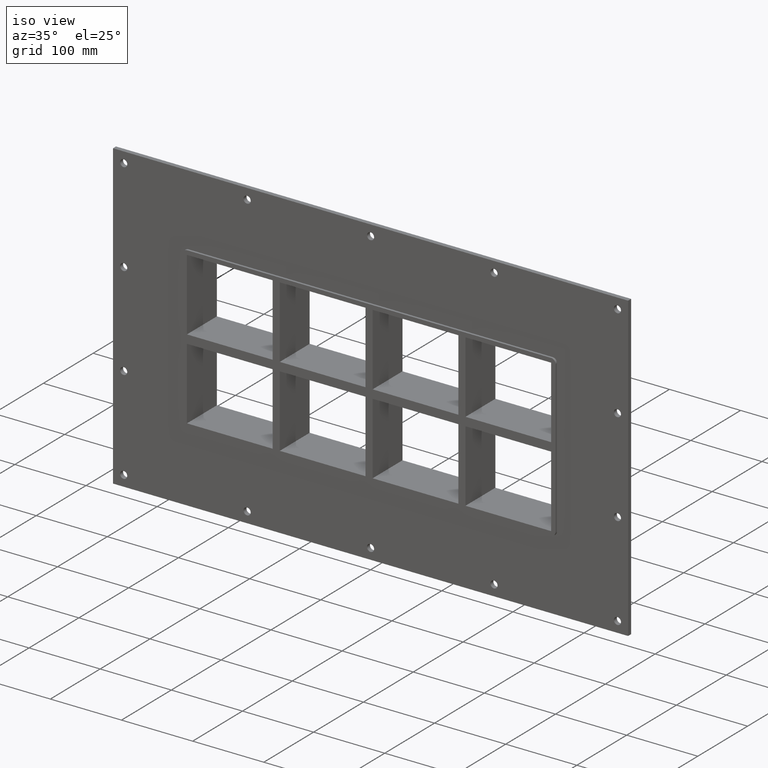
[diagram: clean part render]
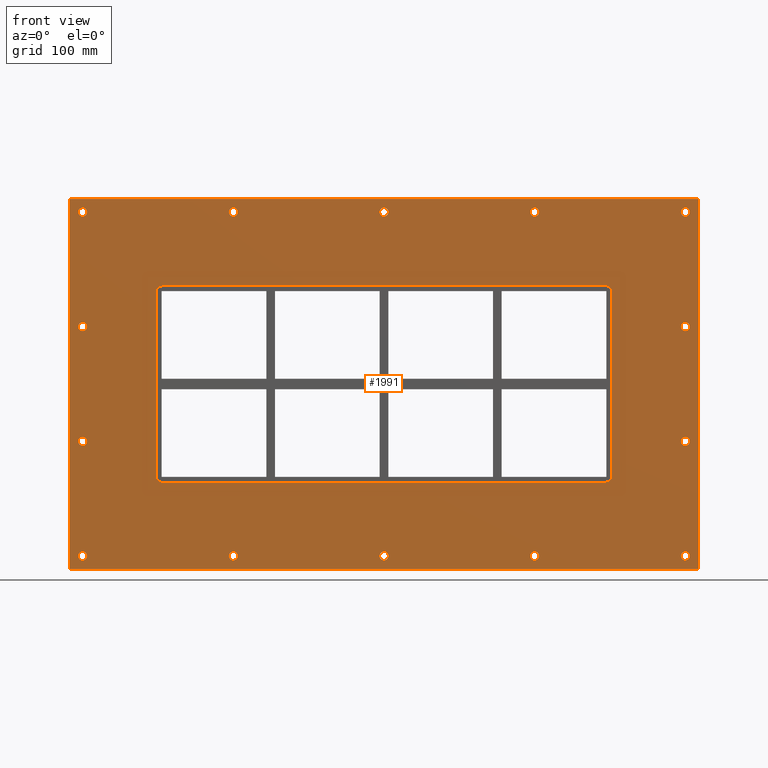
[diagram: tour spotlight — one face highlighted and labeled with its STEP entity id]
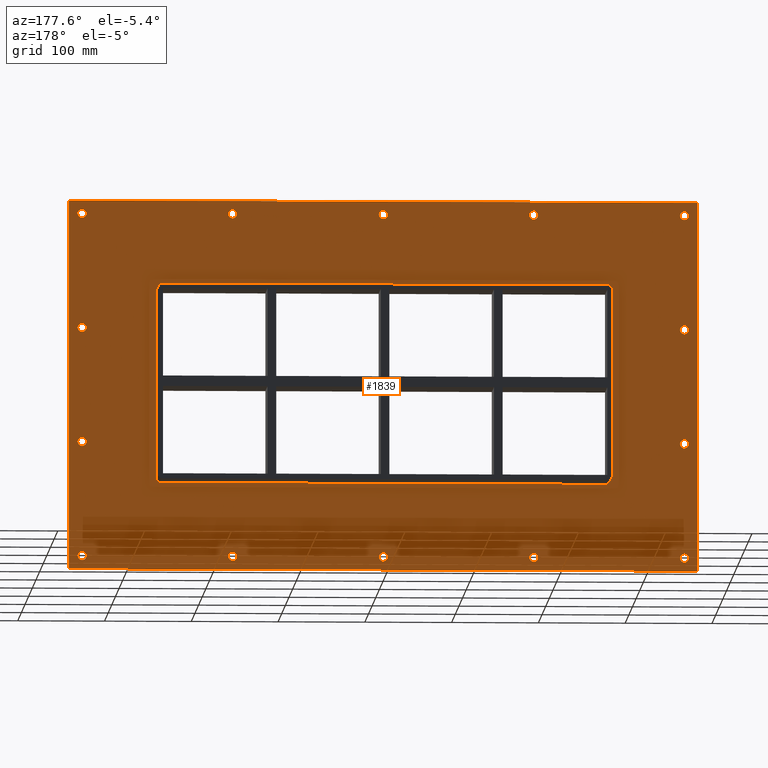
[diagram: tour spotlight — one face highlighted and labeled with its STEP entity id]
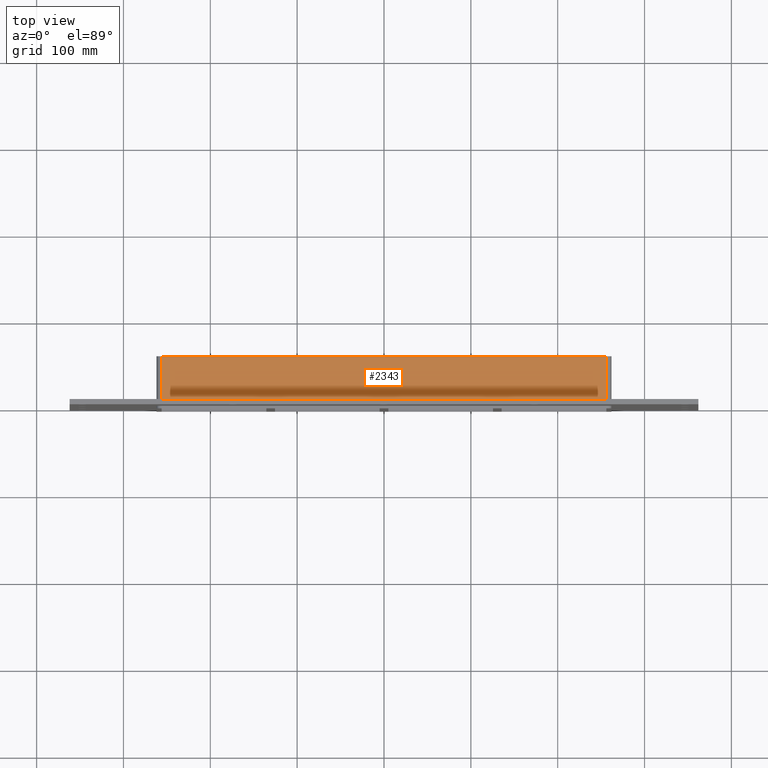
[diagram: tour spotlight — one face highlighted and labeled with its STEP entity id]
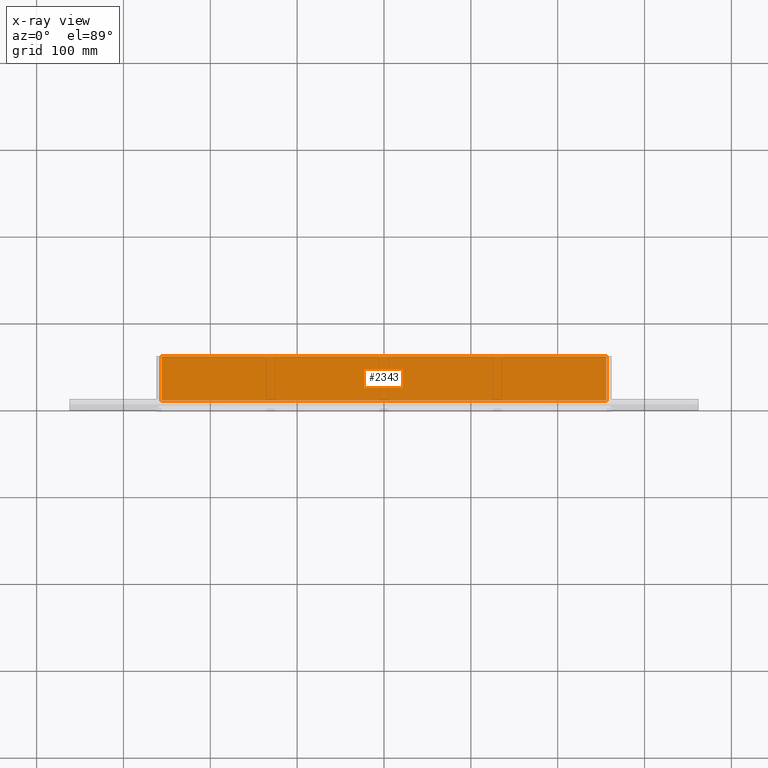
[diagram: x-ray of the same camera — body ghosted, this tour face saturated]
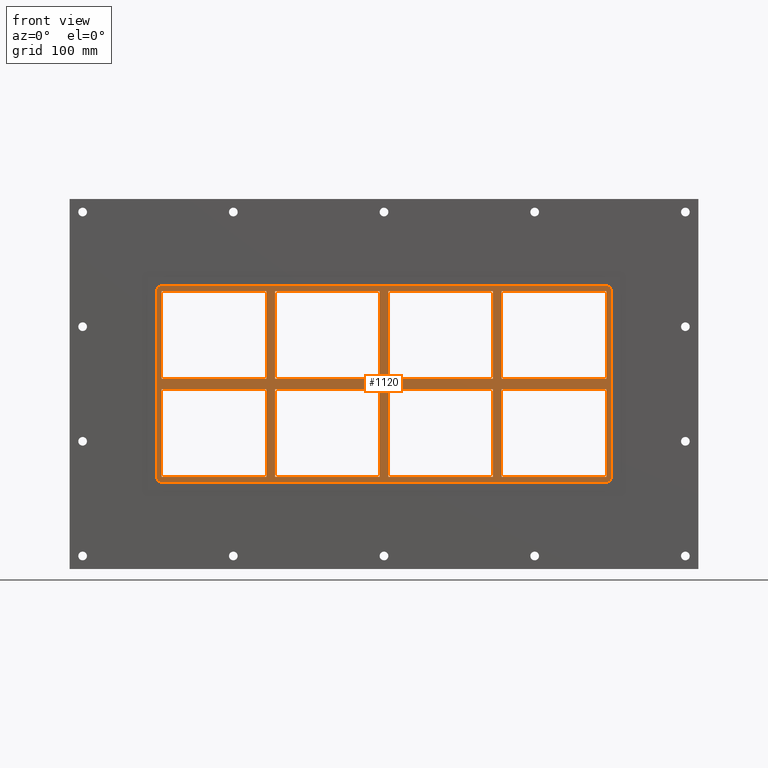
[diagram: tour spotlight — one face highlighted and labeled with its STEP entity id]
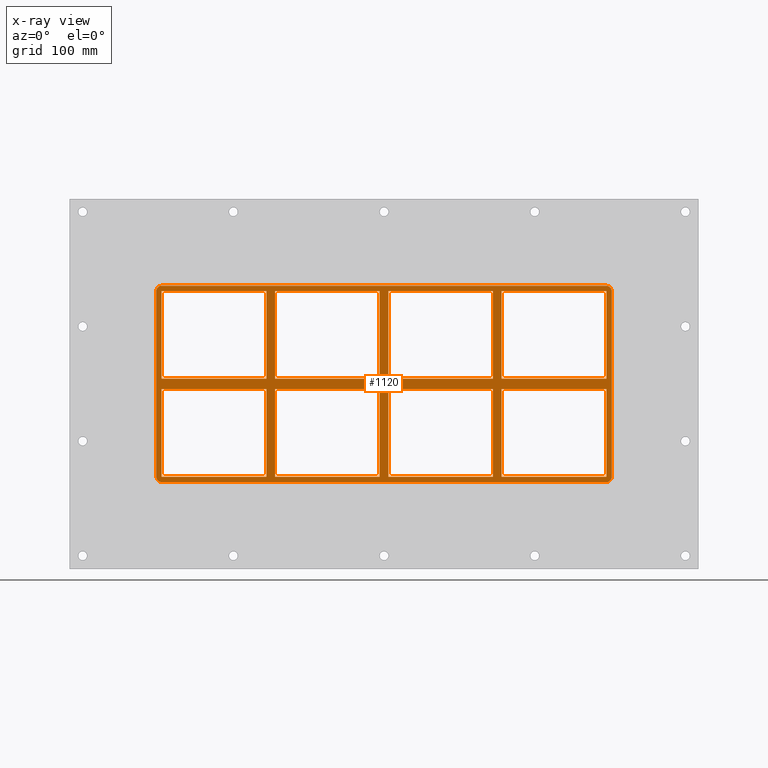
[diagram: x-ray of the same camera — body ghosted, this tour face saturated]
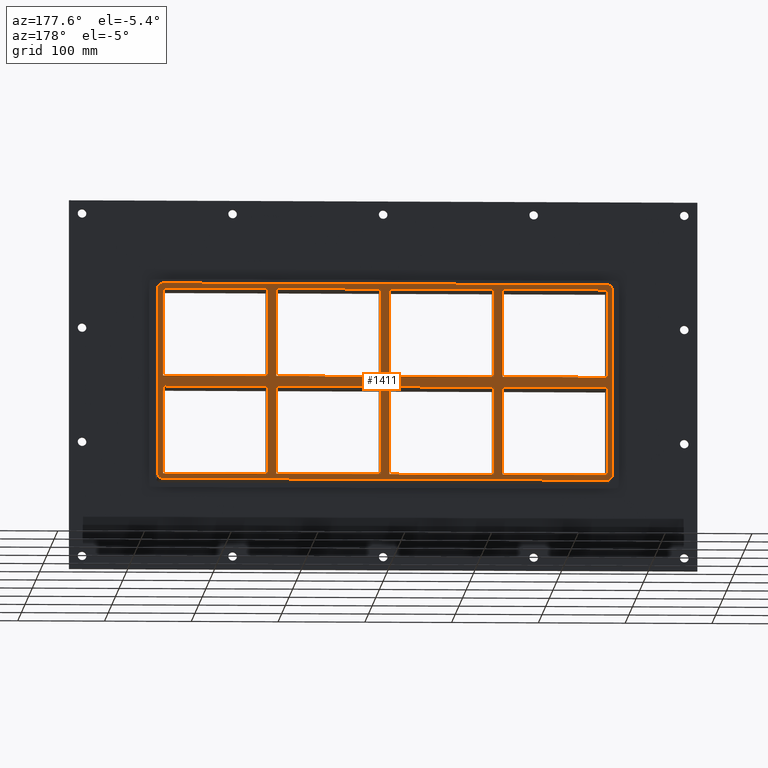
[diagram: tour spotlight — one face highlighted and labeled with its STEP entity id]
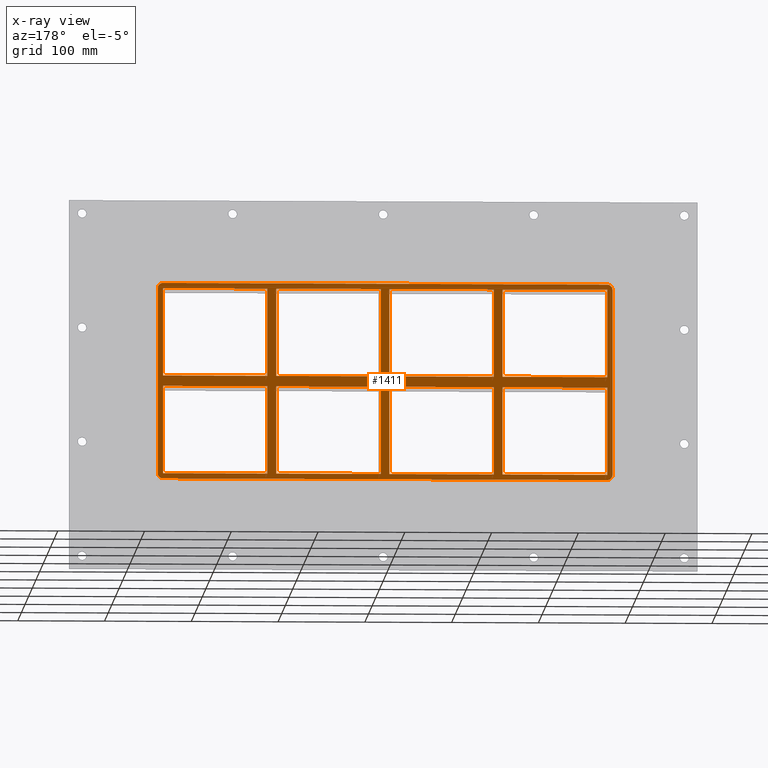
[diagram: x-ray of the same camera — body ghosted, this tour face saturated]
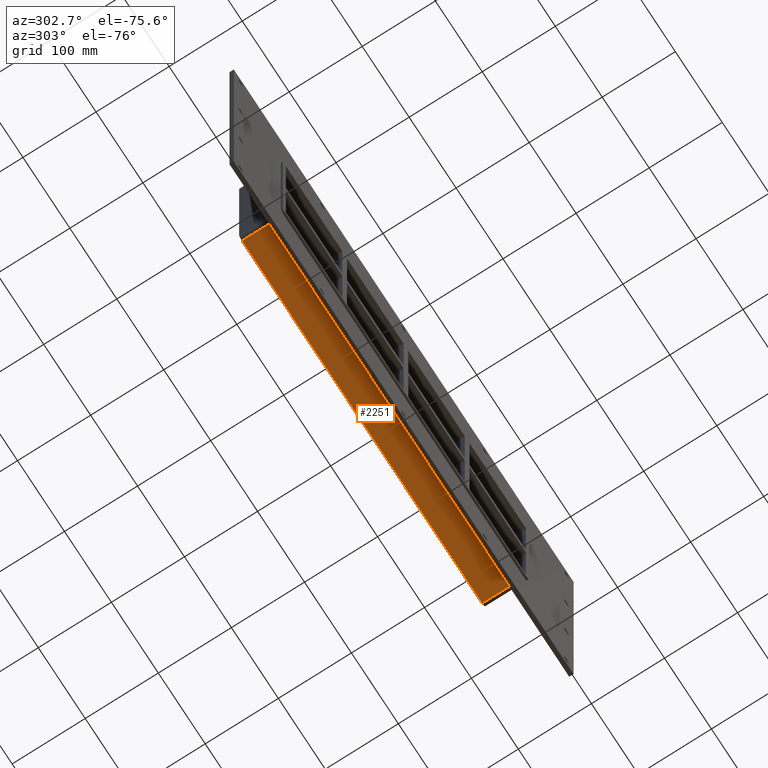
[diagram: tour spotlight — one face highlighted and labeled with its STEP entity id]
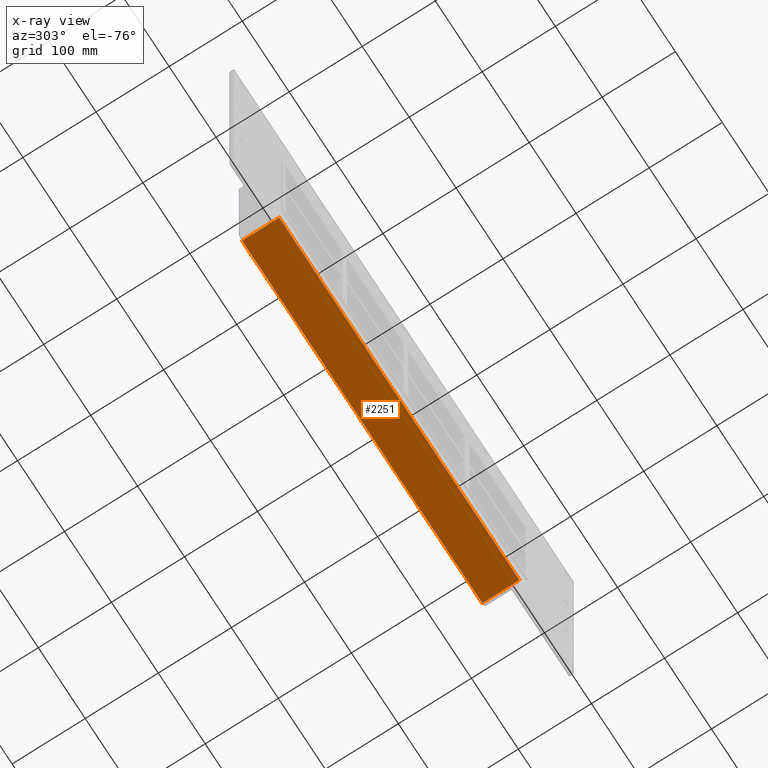
[diagram: x-ray of the same camera — body ghosted, this tour face saturated]
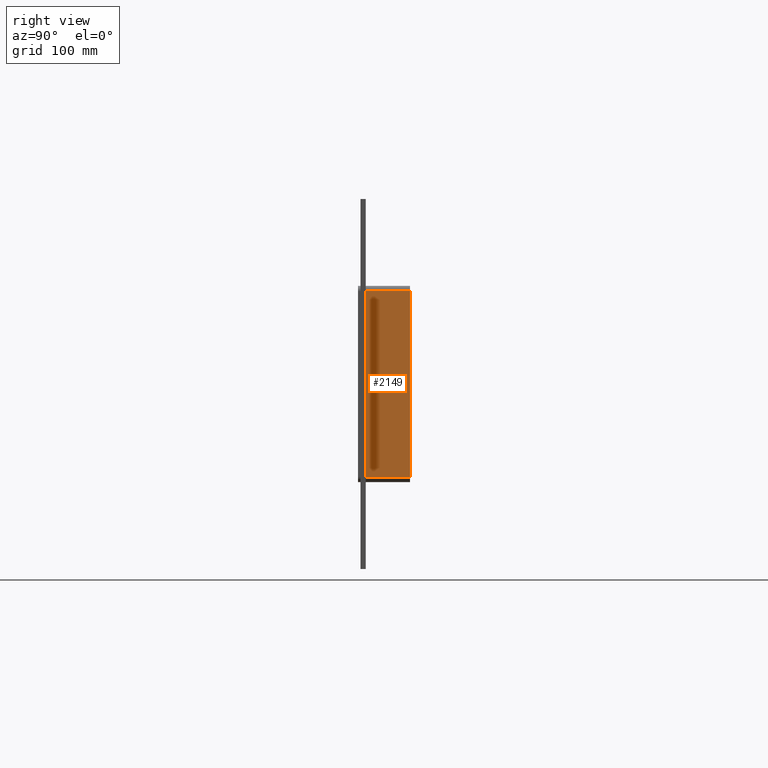
[diagram: tour spotlight — one face highlighted and labeled with its STEP entity id]
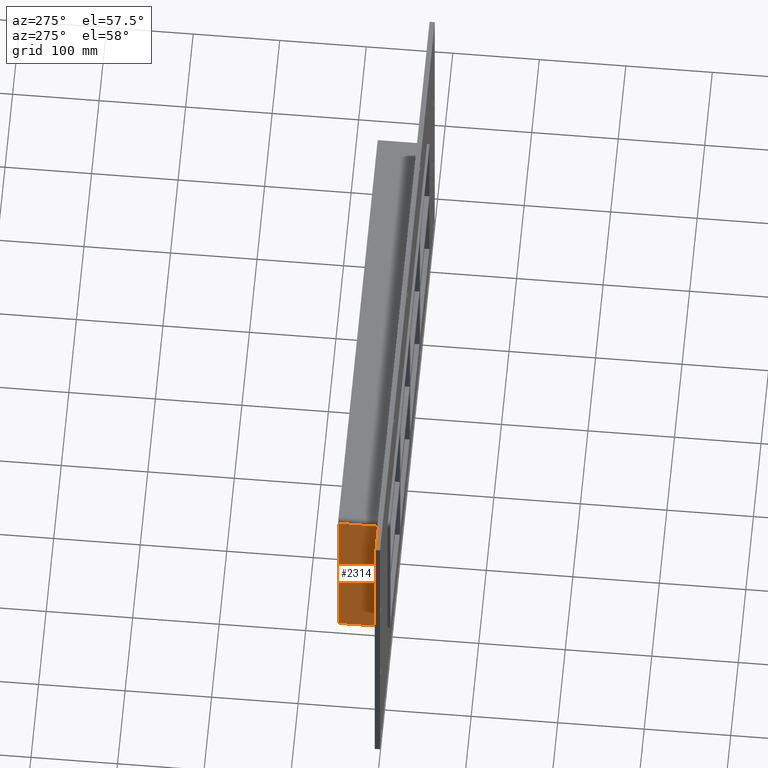
[diagram: tour spotlight — one face highlighted and labeled with its STEP entity id]
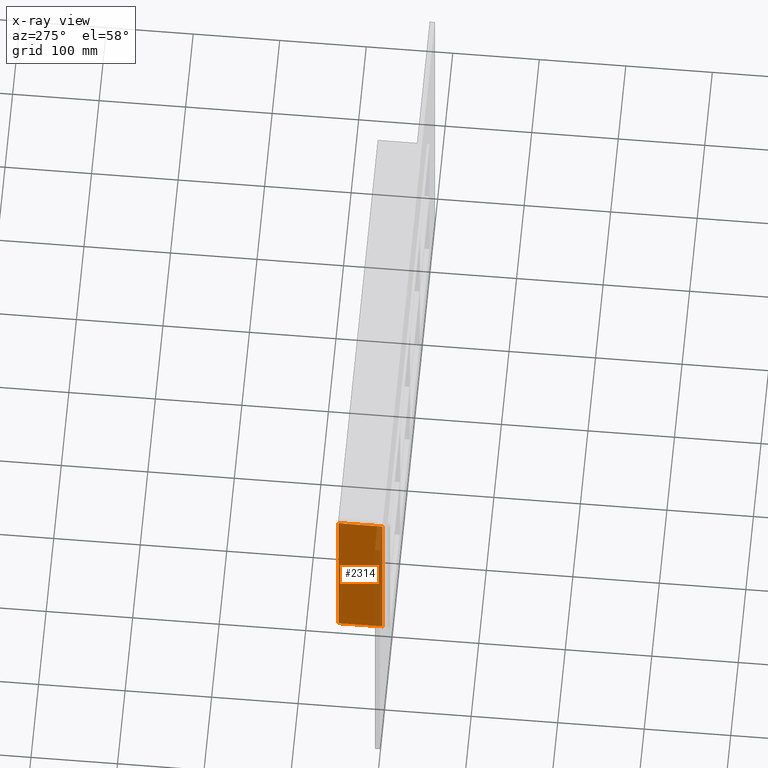
[diagram: x-ray of the same camera — body ghosted, this tour face saturated]
A machine part: a face-by-face anatomy tour. The part has 70 B-rep faces; the first image is the clean iso view, then the 8 largest visible faces are spotlighted one at a time (largest first), each with its STEP entity span.

Face 1 — front view, entity #1991. In plain terms, the highlighted planar face has unit normal (0, 1, 0).
Definition (entity closure, byte-faithful):
#84=CARTESIAN_POINT('',(-341.99999999999989,0.0,-197.99999999999997));
#85=VERTEX_POINT('',#84);
#86=CARTESIAN_POINT('',(-346.99999999999989,0.0,-197.99999999999997));
#87=DIRECTION('',(0.0,1.0,0.0));
#88=DIRECTION('',(1.0,0.0,0.0));
#89=AXIS2_PLACEMENT_3D('',#86,#87,#88);
#90=CIRCLE('',#89,5.0);
#91=EDGE_CURVE('',#85,#85,#90,.T.);
#112=CARTESIAN_POINT('',(352.00000000000017,0.0,-66.000000000000014));
#113=VERTEX_POINT('',#112);
#114=CARTESIAN_POINT('',(347.00000000000017,0.0,-66.000000000000014));
#115=DIRECTION('',(0.0,1.0,0.0));
#116=DIRECTION('',(1.0,0.0,0.0));
#117=AXIS2_PLACEMENT_3D('',#114,#115,#116);
#118=CIRCLE('',#117,5.0);
#119=EDGE_CURVE('',#113,#113,#118,.T.);
#140=CARTESIAN_POINT('',(-341.99999999999989,0.0,-66.000000000000014));
#141=VERTEX_POINT('',#140);
#142=CARTESIAN_POINT('',(-346.99999999999989,0.0,-66.000000000000014));
#143=DIRECTION('',(0.0,1.0,0.0));
#144=DIRECTION('',(1.0,0.0,0.0));
#145=AXIS2_PLACEMENT_3D('',#142,#143,#144);
#146=CIRCLE('',#145,5.0);
#147=EDGE_CURVE('',#141,#141,#146,.T.);
#168=CARTESIAN_POINT('',(352.00000000000017,0.0,66.0));
#169=VERTEX_POINT('',#168);
#170=CARTESIAN_POINT('',(347.00000000000017,0.0,66.0));
#171=DIRECTION('',(0.0,1.0,0.0));
#172=DIRECTION('',(1.0,0.0,0.0));
#173=AXIS2_PLACEMENT_3D('',#170,#171,#172);
#174=CIRCLE('',#173,5.0);
#175=EDGE_CURVE('',#169,#169,#174,.T.);
#196=CARTESIAN_POINT('',(-341.99999999999989,0.0,66.0));
#197=VERTEX_POINT('',#196);
#198=CARTESIAN_POINT('',(-346.99999999999989,0.0,66.0));
#199=DIRECTION('',(0.0,1.0,0.0));
#200=DIRECTION('',(1.0,0.0,0.0));
#201=AXIS2_PLACEMENT_3D('',#198,#199,#200);
#202=CIRCLE('',#201,5.0);
#203=EDGE_CURVE('',#197,#197,#202,.T.);
#224=CARTESIAN_POINT('',(-168.49999999999989,0.0,198.0));
#225=VERTEX_POINT('',#224);
#226=CARTESIAN_POINT('',(-173.49999999999989,0.0,198.0));
#227=DIRECTION('',(0.0,1.0,0.0));
#228=DIRECTION('',(1.0,0.0,0.0));
#229=AXIS2_PLACEMENT_3D('',#226,#227,#228);
#230=CIRCLE('',#229,5.0);
#231=EDGE_CURVE('',#225,#225,#230,.T.);
#252=CARTESIAN_POINT('',(-168.49999999999989,0.0,-198.0));
#253=VERTEX_POINT('',#252);
#254=CARTESIAN_POINT('',(-173.49999999999989,0.0,-198.0));
#255=DIRECTION('',(0.0,1.0,0.0));
#256=DIRECTION('',(1.0,0.0,0.0));
#257=AXIS2_PLACEMENT_3D('',#254,#255,#256);
#258=CIRCLE('',#257,5.0);
#259=EDGE_CURVE('',#253,#253,#258,.T.);
#280=CARTESIAN_POINT('',(5.000000000000142,0.0,198.0));
#281=VERTEX_POINT('',#280);
#282=CARTESIAN_POINT('',(1.421085E-013,0.0,198.0));
#283=DIRECTION('',(0.0,1.0,0.0));
#284=DIRECTION('',(1.0,0.0,0.0));
#285=AXIS2_PLACEMENT_3D('',#282,#283,#284);
#286=CIRCLE('',#285,5.0);
#287=EDGE_CURVE('',#281,#281,#286,.T.);
#308=CARTESIAN_POINT('',(5.000000000000142,0.0,-198.0));
#309=VERTEX_POINT('',#308);
#310=CARTESIAN_POINT('',(1.421085E-013,0.0,-198.0));
#311=DIRECTION('',(0.0,1.0,0.0));
#312=DIRECTION('',(1.0,0.0,0.0));
#313=AXIS2_PLACEMENT_3D('',#310,#311,#312);
#314=CIRCLE('',#313,5.0);
#315=EDGE_CURVE('',#309,#309,#314,.T.);
#336=CARTESIAN_POINT('',(178.50000000000017,0.0,198.0));
#337=VERTEX_POINT('',#336);
#338=CARTESIAN_POINT('',(173.50000000000017,0.0,198.0));
#339=DIRECTION('',(0.0,1.0,0.0));
#340=DIRECTION('',(1.0,0.0,0.0));
#341=AXIS2_PLACEMENT_3D('',#338,#339,#340);
#342=CIRCLE('',#341,5.0);
#343=EDGE_CURVE('',#337,#337,#342,.T.);
#364=CARTESIAN_POINT('',(178.50000000000017,0.0,-198.0));
#365=VERTEX_POINT('',#364);
#366=CARTESIAN_POINT('',(173.50000000000017,0.0,-198.0));
#367=DIRECTION('',(0.0,1.0,0.0));
#368=DIRECTION('',(1.0,0.0,0.0));
#369=AXIS2_PLACEMENT_3D('',#366,#367,#368);
#370=CIRCLE('',#369,5.0);
#371=EDGE_CURVE('',#365,#365,#370,.T.);
#392=CARTESIAN_POINT('',(352.00000000000017,0.0,-198.0));
#393=VERTEX_POINT('',#392);
#394=CARTESIAN_POINT('',(347.00000000000017,0.0,-198.0));
#395=DIRECTION('',(0.0,1.0,0.0));
#396=DIRECTION('',(1.0,0.0,0.0));
#397=AXIS2_PLACEMENT_3D('',#394,#395,#396);
#398=CIRCLE('',#397,5.0);
#399=EDGE_CURVE('',#393,#393,#398,.T.);
#420=CARTESIAN_POINT('',(-341.99999999999989,0.0,198.0));
#421=VERTEX_POINT('',#420);
#422=CARTESIAN_POINT('',(-346.99999999999989,0.0,198.0));
#423=DIRECTION('',(0.0,1.0,0.0));
#424=DIRECTION('',(1.0,0.0,0.0));
#425=AXIS2_PLACEMENT_3D('',#422,#423,#424);
#426=CIRCLE('',#425,5.0);
#427=EDGE_CURVE('',#421,#421,#426,.T.);
#448=CARTESIAN_POINT('',(352.00000000000017,0.0,198.0));
#449=VERTEX_POINT('',#448);
#450=CARTESIAN_POINT('',(347.00000000000017,0.0,198.0));
#451=DIRECTION('',(0.0,1.0,0.0));
#452=DIRECTION('',(1.0,0.0,0.0));
#453=AXIS2_PLACEMENT_3D('',#450,#451,#452);
#454=CIRCLE('',#453,5.0);
#455=EDGE_CURVE('',#449,#449,#454,.T.);
#1840=CARTESIAN_POINT('',(4.448615E-014,0.0,-2.140896E-014));
#1841=DIRECTION('',(0.0,1.0,0.0));
#1842=DIRECTION('',(0.0,0.0,1.0));
#1843=AXIS2_PLACEMENT_3D('',#1840,#1841,#1842);
#1844=PLANE('',#1843);
#1845=CARTESIAN_POINT('',(-361.99999999999989,0.0,212.99999999999997));
#1846=VERTEX_POINT('',#1845);
#1847=CARTESIAN_POINT('',(361.99999999999994,0.0,212.99999999999997));
#1848=VERTEX_POINT('',#1847);
#1849=CARTESIAN_POINT('',(-361.99999999999989,0.0,212.99999999999997));
#1850=DIRECTION('',(1.0,0.0,0.0));
#1851=VECTOR('',#1850,723.99999999999977);
#1852=LINE('',#1849,#1851);
#1853=EDGE_CURVE('',#1846,#1848,#1852,.T.);
#1854=ORIENTED_EDGE('',*,*,#1853,.F.);
#1855=CARTESIAN_POINT('',(-361.99999999999989,0.0,-213.0));
#1856=VERTEX_POINT('',#1855);
#1857=CARTESIAN_POINT('',(-361.99999999999989,0.0,-213.0));
#1858=DIRECTION('',(0.0,0.0,1.0));
#1859=VECTOR('',#1858,425.99999999999994);
#1860=LINE('',#1857,#1859);
#1861=EDGE_CURVE('',#1856,#1846,#1860,.T.);
#1862=ORIENTED_EDGE('',*,*,#1861,.F.);
#1863=CARTESIAN_POINT('',(361.99999999999994,0.0,-213.0));
#1864=VERTEX_POINT('',#1863);
#1865=CARTESIAN_POINT('',(361.99999999999994,0.0,-213.0));
#1866=DIRECTION('',(-1.0,0.0,0.0));
#1867=VECTOR('',#1866,723.99999999999977);
#1868=LINE('',#1865,#1867);
#1869=EDGE_CURVE('',#1864,#1856,#1868,.T.);
#1870=ORIENTED_EDGE('',*,*,#1869,.F.);
#1871=CARTESIAN_POINT('',(361.99999999999994,0.0,212.99999999999997));
#1872=DIRECTION('',(0.0,0.0,-1.0));
#1873=VECTOR('',#1872,425.99999999999994);
#1874=LINE('',#1871,#1873);
#1875=EDGE_CURVE('',#1848,#1864,#1874,.T.);
#1876=ORIENTED_EDGE('',*,*,#1875,.F.);
#1877=EDGE_LOOP('',(#1854,#1862,#1870,#1876));
#1878=FACE_OUTER_BOUND('',#1877,.T.);
#1879=ORIENTED_EDGE('',*,*,#91,.T.);
#1880=EDGE_LOOP('',(#1879));
#1881=FACE_BOUND('',#1880,.T.);
#1882=ORIENTED_EDGE('',*,*,#119,.T.);
#1883=EDGE_LOOP('',(#1882));
#1884=FACE_BOUND('',#1883,.T.);
#1885=ORIENTED_EDGE('',*,*,#147,.T.);
#1886=EDGE_LOOP('',(#1885));
#1887=FACE_BOUND('',#1886,.T.);
#1888=ORIENTED_EDGE('',*,*,#175,.T.);
#1889=EDGE_LOOP('',(#1888));
#1890=FACE_BOUND('',#1889,.T.);
#1891=ORIENTED_EDGE('',*,*,#203,.T.);
#1892=EDGE_LOOP('',(#1891));
#1893=FACE_BOUND('',#1892,.T.);
#1894=ORIENTED_EDGE('',*,*,#231,.T.);
#1895=EDGE_LOOP('',(#1894));
#1896=FACE_BOUND('',#1895,.T.);
#1897=ORIENTED_EDGE('',*,*,#259,.T.);
#1898=EDGE_LOOP('',(#1897));
#1899=FACE_BOUND('',#1898,.T.);
#1900=ORIENTED_EDGE('',*,*,#287,.T.);
#1901=EDGE_LOOP('',(#1900));
#1902=FACE_BOUND('',#1901,.T.);
#1903=ORIENTED_EDGE('',*,*,#315,.T.);
#1904=EDGE_LOOP('',(#1903));
#1905=FACE_BOUND('',#1904,.T.);
#1906=ORIENTED_EDGE('',*,*,#343,.T.);
#1907=EDGE_LOOP('',(#1906));
#1908=FACE_BOUND('',#1907,.T.);
#1909=ORIENTED_EDGE('',*,*,#371,.T.);
#1910=EDGE_LOOP('',(#1909));
#1911=FACE_BOUND('',#1910,.T.);
#1912=ORIENTED_EDGE('',*,*,#399,.T.);
#1913=EDGE_LOOP('',(#1912));
#1914=FACE_BOUND('',#1913,.T.);
#1915=ORIENTED_EDGE('',*,*,#427,.T.);
#1916=EDGE_LOOP('',(#1915));
#1917=FACE_BOUND('',#1916,.T.);
#1918=ORIENTED_EDGE('',*,*,#455,.T.);
#1919=EDGE_LOOP('',(#1918));
#1920=FACE_BOUND('',#1919,.T.);
#1921=CARTESIAN_POINT('',(-262.0,0.0,-107.0));
#1922=VERTEX_POINT('',#1921);
#1923=CARTESIAN_POINT('',(-255.99999999999997,0.0,-113.0));
#1924=VERTEX_POINT('',#1923);
#1925=CARTESIAN_POINT('',(-255.99999999999997,0.0,-107.0));
#1926=DIRECTION('',(0.0,-1.0,0.0));
#1927=DIRECTION('',(-0.707106781186548,0.0,-0.707106781186548));
#1928=AXIS2_PLACEMENT_3D('',#1925,#1926,#1927);
#1929=CIRCLE('',#1928,6.000000000000002);
#1930=EDGE_CURVE('',#1922,#1924,#1929,.T.);
#1931=ORIENTED_EDGE('',*,*,#1930,.F.);
#1932=CARTESIAN_POINT('',(-262.0,0.0,107.0));
#1933=VERTEX_POINT('',#1932);
#1934=CARTESIAN_POINT('',(-262.0,0.0,106.99999999999999));
#1935=DIRECTION('',(0.0,0.0,-1.0));
#1936=VECTOR('',#1935,214.0);
#1937=LINE('',#1934,#1936);
#1938=EDGE_CURVE('',#1933,#1922,#1937,.T.);
#1939=ORIENTED_EDGE('',*,*,#1938,.F.);
#1940=CARTESIAN_POINT('',(-255.99999999999997,0.0,113.0));
#1941=VERTEX_POINT('',#1940);
#1942=CARTESIAN_POINT('',(-255.99999999999997,0.0,107.0));
#1943=DIRECTION('',(0.0,-1.0,0.0));
#1944=DIRECTION('',(-0.707106781186548,0.0,0.707106781186548));
#1945=AXIS2_PLACEMENT_3D('',#1942,#1943,#1944);
#1946=CIRCLE('',#1945,6.000000000000002);
#1947=EDGE_CURVE('',#1941,#1933,#1946,.T.);
#1948=ORIENTED_EDGE('',*,*,#1947,.F.);
#1949=CARTESIAN_POINT('',(256.00000000000006,0.0,113.0));
#1950=VERTEX_POINT('',#1949);
#1951=CARTESIAN_POINT('',(256.0,0.0,113.0));
#1952=DIRECTION('',(-1.0,0.0,0.0));
#1953=VECTOR('',#1952,512.0);
#1954=LINE('',#1951,#1953);
#1955=EDGE_CURVE('',#1950,#1941,#1954,.T.);
#1956=ORIENTED_EDGE('',*,*,#1955,.F.);
#1957=CARTESIAN_POINT('',(262.00000000000006,0.0,107.00000000000001));
#1958=VERTEX_POINT('',#1957);
#1959=CARTESIAN_POINT('',(256.00000000000006,0.0,107.00000000000001));
#1960=DIRECTION('',(0.0,-1.0,0.0));
#1961=DIRECTION('',(0.70710678118655,0.0,0.707106781186545));
#1962=AXIS2_PLACEMENT_3D('',#1959,#1960,#1961);
#1963=CIRCLE('',#1962,6.000000000000001);
#1964=EDGE_CURVE('',#1958,#1950,#1963,.T.);
#1965=ORIENTED_EDGE('',*,*,#1964,.F.);
#1966=CARTESIAN_POINT('',(262.00000000000006,0.0,-107.0));
#1967=VERTEX_POINT('',#1966);
#1968=CARTESIAN_POINT('',(262.00000000000006,0.0,-106.99999999999997));
#1969=DIRECTION('',(0.0,0.0,1.0));
#1970=VECTOR('',#1969,213.99999999999997);
#1971=LINE('',#1968,#1970);
#1972=EDGE_CURVE('',#1967,#1958,#1971,.T.);
#1973=ORIENTED_EDGE('',*,*,#1972,.F.);
#1974=CARTESIAN_POINT('',(256.00000000000006,0.0,-113.0));
#1975=VERTEX_POINT('',#1974);
#1976=CARTESIAN_POINT('',(256.00000000000006,0.0,-107.0));
#1977=DIRECTION('',(0.0,-1.0,0.0));
#1978=DIRECTION('',(0.707106781186548,0.0,-0.707106781186548));
#1979=AXIS2_PLACEMENT_3D('',#1976,#1977,#1978);
#1980=CIRCLE('',#1979,6.000000000000002);
#1981=EDGE_CURVE('',#1975,#1967,#1980,.T.);
#1982=ORIENTED_EDGE('',*,*,#1981,.F.);
#1983=CARTESIAN_POINT('',(-255.99999999999994,0.0,-113.0));
#1984=DIRECTION('',(1.0,0.0,0.0));
#1985=VECTOR('',#1984,512.0);
#1986=LINE('',#1983,#1985);
#1987=EDGE_CURVE('',#1924,#1975,#1986,.T.);
#1988=ORIENTED_EDGE('',*,*,#1987,.F.);
#1989=EDGE_LOOP('',(#1931,#1939,#1948,#1956,#1965,#1973,#1982,#1988));
#1990=FACE_BOUND('',#1989,.T.);
#1991=ADVANCED_FACE('',(#1878,#1881,#1884,#1887,#1890,#1893,#1896,#1899,#1902,#1905,#1908,#1911,#1914,#1917,#1920,#1990),#1844,.F.);

Face 2 — auxiliary view, entity #1839. In plain terms, the highlighted planar face has unit normal (0, 1, 0).
Definition (entity closure, byte-faithful):
#73=CARTESIAN_POINT('',(-351.99999999999989,5.999999999999943,-197.99999999999997));
#74=VERTEX_POINT('',#73);
#75=CARTESIAN_POINT('',(-346.99999999999989,5.999999999999943,-197.99999999999997));
#76=DIRECTION('',(0.0,-1.0,0.0));
#77=DIRECTION('',(1.0,0.0,0.0));
#78=AXIS2_PLACEMENT_3D('',#75,#76,#77);
#79=CIRCLE('',#78,5.0);
#80=EDGE_CURVE('',#74,#74,#79,.T.);
#101=CARTESIAN_POINT('',(342.00000000000017,5.999999999999943,-66.000000000000014));
#102=VERTEX_POINT('',#101);
#103=CARTESIAN_POINT('',(347.00000000000017,5.999999999999943,-66.000000000000014));
#104=DIRECTION('',(0.0,-1.0,0.0));
#105=DIRECTION('',(1.0,0.0,0.0));
#106=AXIS2_PLACEMENT_3D('',#103,#104,#105);
#107=CIRCLE('',#106,5.0);
#108=EDGE_CURVE('',#102,#102,#107,.T.);
#129=CARTESIAN_POINT('',(-351.99999999999989,5.999999999999943,-66.000000000000014));
#130=VERTEX_POINT('',#129);
#131=CARTESIAN_POINT('',(-346.99999999999989,5.999999999999943,-66.000000000000014));
#132=DIRECTION('',(0.0,-1.0,0.0));
#133=DIRECTION('',(1.0,0.0,0.0));
#134=AXIS2_PLACEMENT_3D('',#131,#132,#133);
#135=CIRCLE('',#134,5.0);
#136=EDGE_CURVE('',#130,#130,#135,.T.);
#157=CARTESIAN_POINT('',(342.00000000000017,5.999999999999943,66.0));
#158=VERTEX_POINT('',#157);
#159=CARTESIAN_POINT('',(347.00000000000017,5.999999999999943,66.0));
#160=DIRECTION('',(0.0,-1.0,0.0));
#161=DIRECTION('',(1.0,0.0,0.0));
#162=AXIS2_PLACEMENT_3D('',#159,#160,#161);
#163=CIRCLE('',#162,5.0);
#164=EDGE_CURVE('',#158,#158,#163,.T.);
#185=CARTESIAN_POINT('',(-351.99999999999989,5.999999999999943,66.0));
#186=VERTEX_POINT('',#185);
#187=CARTESIAN_POINT('',(-346.99999999999989,5.999999999999943,66.0));
#188=DIRECTION('',(0.0,-1.0,0.0));
#189=DIRECTION('',(1.0,0.0,0.0));
#190=AXIS2_PLACEMENT_3D('',#187,#188,#189);
#191=CIRCLE('',#190,5.0);
#192=EDGE_CURVE('',#186,#186,#191,.T.);
#213=CARTESIAN_POINT('',(-178.49999999999989,5.999999999999943,198.0));
#214=VERTEX_POINT('',#213);
#215=CARTESIAN_POINT('',(-173.49999999999989,5.999999999999943,198.0));
#216=DIRECTION('',(0.0,-1.0,0.0));
#217=DIRECTION('',(1.0,0.0,0.0));
#218=AXIS2_PLACEMENT_3D('',#215,#216,#217);
#219=CIRCLE('',#218,5.0);
#220=EDGE_CURVE('',#214,#214,#219,.T.);
#241=CARTESIAN_POINT('',(-178.49999999999989,5.999999999999943,-198.0));
#242=VERTEX_POINT('',#241);
#243=CARTESIAN_POINT('',(-173.49999999999989,5.999999999999943,-198.0));
#244=DIRECTION('',(0.0,-1.0,0.0));
#245=DIRECTION('',(1.0,0.0,0.0));
#246=AXIS2_PLACEMENT_3D('',#243,#244,#245);
#247=CIRCLE('',#246,5.0);
#248=EDGE_CURVE('',#242,#242,#247,.T.);
#269=CARTESIAN_POINT('',(-4.999999999999858,5.999999999999943,198.0));
#270=VERTEX_POINT('',#269);
#271=CARTESIAN_POINT('',(1.421085E-013,5.999999999999943,198.0));
#272=DIRECTION('',(0.0,-1.0,0.0));
#273=DIRECTION('',(1.0,0.0,0.0));
#274=AXIS2_PLACEMENT_3D('',#271,#272,#273);
#275=CIRCLE('',#274,5.0);
#276=EDGE_CURVE('',#270,#270,#275,.T.);
#297=CARTESIAN_POINT('',(-4.999999999999858,5.999999999999943,-198.0));
#298=VERTEX_POINT('',#297);
#299=CARTESIAN_POINT('',(1.421085E-013,5.999999999999943,-198.0));
#300=DIRECTION('',(0.0,-1.0,0.0));
#301=DIRECTION('',(1.0,0.0,0.0));
#302=AXIS2_PLACEMENT_3D('',#299,#300,#301);
#303=CIRCLE('',#302,5.0);
#304=EDGE_CURVE('',#298,#298,#303,.T.);
#325=CARTESIAN_POINT('',(168.50000000000017,5.999999999999943,198.0));
#326=VERTEX_POINT('',#325);
#327=CARTESIAN_POINT('',(173.50000000000017,5.999999999999943,198.0));
#328=DIRECTION('',(0.0,-1.0,0.0));
#329=DIRECTION('',(1.0,0.0,0.0));
#330=AXIS2_PLACEMENT_3D('',#327,#328,#329);
#331=CIRCLE('',#330,5.0);
#332=EDGE_CURVE('',#326,#326,#331,.T.);
#353=CARTESIAN_POINT('',(168.50000000000017,5.999999999999943,-198.0));
#354=VERTEX_POINT('',#353);
#355=CARTESIAN_POINT('',(173.50000000000017,5.999999999999943,-198.0));
#356=DIRECTION('',(0.0,-1.0,0.0));
#357=DIRECTION('',(1.0,0.0,0.0));
#358=AXIS2_PLACEMENT_3D('',#355,#356,#357);
#359=CIRCLE('',#358,5.0);
#360=EDGE_CURVE('',#354,#354,#359,.T.);
#381=CARTESIAN_POINT('',(342.00000000000017,5.999999999999943,-198.0));
#382=VERTEX_POINT('',#381);
#383=CARTESIAN_POINT('',(347.00000000000017,5.999999999999943,-198.0));
#384=DIRECTION('',(0.0,-1.0,0.0));
#385=DIRECTION('',(1.0,0.0,0.0));
#386=AXIS2_PLACEMENT_3D('',#383,#384,#385);
#387=CIRCLE('',#386,5.0);
#388=EDGE_CURVE('',#382,#382,#387,.T.);
#409=CARTESIAN_POINT('',(-351.99999999999989,5.999999999999943,198.0));
#410=VERTEX_POINT('',#409);
#411=CARTESIAN_POINT('',(-346.99999999999989,5.999999999999943,198.0));
#412=DIRECTION('',(0.0,-1.0,0.0));
#413=DIRECTION('',(1.0,0.0,0.0));
#414=AXIS2_PLACEMENT_3D('',#411,#412,#413);
#415=CIRCLE('',#414,5.0);
#416=EDGE_CURVE('',#410,#410,#415,.T.);
#437=CARTESIAN_POINT('',(342.00000000000017,5.999999999999943,198.0));
#438=VERTEX_POINT('',#437);
#439=CARTESIAN_POINT('',(347.00000000000017,5.999999999999943,198.0));
#440=DIRECTION('',(0.0,-1.0,0.0));
#441=DIRECTION('',(1.0,0.0,0.0));
#442=AXIS2_PLACEMENT_3D('',#439,#440,#441);
#443=CIRCLE('',#442,5.0);
#444=EDGE_CURVE('',#438,#438,#443,.T.);
#1688=CARTESIAN_POINT('',(4.448615E-014,6.000000000000001,-2.140896E-014));
#1689=DIRECTION('',(0.0,1.0,0.0));
#1690=DIRECTION('',(0.0,0.0,1.0));
#1691=AXIS2_PLACEMENT_3D('',#1688,#1689,#1690);
#1692=PLANE('',#1691);
#1693=CARTESIAN_POINT('',(-361.99999999999989,6.000000000000001,212.99999999999997));
#1694=VERTEX_POINT('',#1693);
#1695=CARTESIAN_POINT('',(361.99999999999989,6.000000000000001,212.99999999999997));
#1696=VERTEX_POINT('',#1695);
#1697=CARTESIAN_POINT('',(-361.99999999999989,6.000000000000001,212.99999999999997));
#1698=DIRECTION('',(1.0,0.0,0.0));
#1699=VECTOR('',#1698,723.99999999999977);
#1700=LINE('',#1697,#1699);
#1701=EDGE_CURVE('',#1694,#1696,#1700,.T.);
#1702=ORIENTED_EDGE('',*,*,#1701,.T.);
#1703=CARTESIAN_POINT('',(361.99999999999989,6.000000000000001,-212.99999999999997));
#1704=VERTEX_POINT('',#1703);
#1705=CARTESIAN_POINT('',(361.99999999999994,6.000000000000001,212.99999999999997));
#1706=DIRECTION('',(0.0,0.0,-1.0));
#1707=VECTOR('',#1706,425.99999999999994);
#1708=LINE('',#1705,#1707);
#1709=EDGE_CURVE('',#1696,#1704,#1708,.T.);
#1710=ORIENTED_EDGE('',*,*,#1709,.T.);
#1711=CARTESIAN_POINT('',(-361.99999999999989,6.000000000000001,-212.99999999999997));
#1712=VERTEX_POINT('',#1711);
#1713=CARTESIAN_POINT('',(361.99999999999994,6.000000000000001,-213.0));
#1714=DIRECTION('',(-1.0,0.0,0.0));
#1715=VECTOR('',#1714,723.99999999999977);
#1716=LINE('',#1713,#1715);
#1717=EDGE_CURVE('',#1704,#1712,#1716,.T.);
#1718=ORIENTED_EDGE('',*,*,#1717,.T.);
#1719=CARTESIAN_POINT('',(-361.99999999999989,6.000000000000001,-213.0));
#1720=DIRECTION('',(0.0,0.0,1.0));
#1721=VECTOR('',#1720,425.99999999999994);
#1722=LINE('',#1719,#1721);
#1723=EDGE_CURVE('',#1712,#1694,#1722,.T.);
#1724=ORIENTED_EDGE('',*,*,#1723,.T.);
#1725=EDGE_LOOP('',(#1702,#1710,#1718,#1724));
#1726=FACE_OUTER_BOUND('',#1725,.T.);
#1727=ORIENTED_EDGE('',*,*,#80,.T.);
#1728=EDGE_LOOP('',(#1727));
#1729=FACE_BOUND('',#1728,.T.);
#1730=ORIENTED_EDGE('',*,*,#108,.T.);
#1731=EDGE_LOOP('',(#1730));
#1732=FACE_BOUND('',#1731,.T.);
#1733=ORIENTED_EDGE('',*,*,#136,.T.);
#1734=EDGE_LOOP('',(#1733));
#1735=FACE_BOUND('',#1734,.T.);
#1736=ORIENTED_EDGE('',*,*,#164,.T.);
#1737=EDGE_LOOP('',(#1736));
#1738=FACE_BOUND('',#1737,.T.);
#1739=ORIENTED_EDGE('',*,*,#192,.T.);
#1740=EDGE_LOOP('',(#1739));
#1741=FACE_BOUND('',#1740,.T.);
#1742=ORIENTED_EDGE('',*,*,#220,.T.);
#1743=EDGE_LOOP('',(#1742));
#1744=FACE_BOUND('',#1743,.T.);
#1745=ORIENTED_EDGE('',*,*,#248,.T.);
#1746=EDGE_LOOP('',(#1745));
#1747=FACE_BOUND('',#1746,.T.);
#1748=ORIENTED_EDGE('',*,*,#276,.T.);
#1749=EDGE_LOOP('',(#1748));
#1750=FACE_BOUND('',#1749,.T.);
#1751=ORIENTED_EDGE('',*,*,#304,.T.);
#1752=EDGE_LOOP('',(#1751));
#1753=FACE_BOUND('',#1752,.T.);
#1754=ORIENTED_EDGE('',*,*,#332,.T.);
#1755=EDGE_LOOP('',(#1754));
#1756=FACE_BOUND('',#1755,.T.);
#1757=ORIENTED_EDGE('',*,*,#360,.T.);
#1758=EDGE_LOOP('',(#1757));
#1759=FACE_BOUND('',#1758,.T.);
#1760=ORIENTED_EDGE('',*,*,#388,.T.);
#1761=EDGE_LOOP('',(#1760));
#1762=FACE_BOUND('',#1761,.T.);
#1763=ORIENTED_EDGE('',*,*,#416,.T.);
#1764=EDGE_LOOP('',(#1763));
#1765=FACE_BOUND('',#1764,.T.);
#1766=ORIENTED_EDGE('',*,*,#444,.T.);
#1767=EDGE_LOOP('',(#1766));
#1768=FACE_BOUND('',#1767,.T.);
#1769=CARTESIAN_POINT('',(-255.99999999999997,6.000000000000001,-113.0));
#1770=VERTEX_POINT('',#1769);
#1771=CARTESIAN_POINT('',(-262.0,6.000000000000001,-107.0));
#1772=VERTEX_POINT('',#1771);
#1773=CARTESIAN_POINT('',(-255.99999999999997,6.000000000000001,-107.0));
#1774=DIRECTION('',(0.0,1.0,0.0));
#1775=DIRECTION('',(-0.707106781186548,0.0,-0.707106781186548));
#1776=AXIS2_PLACEMENT_3D('',#1773,#1774,#1775);
#1777=CIRCLE('',#1776,6.000000000000002);
#1778=EDGE_CURVE('',#1770,#1772,#1777,.T.);
#1779=ORIENTED_EDGE('',*,*,#1778,.F.);
#1780=CARTESIAN_POINT('',(256.00000000000006,6.000000000000001,-113.0));
#1781=VERTEX_POINT('',#1780);
#1782=CARTESIAN_POINT('',(256.00000000000006,6.000000000000001,-113.0));
#1783=DIRECTION('',(-1.0,0.0,0.0));
#1784=VECTOR('',#1783,512.0);
#1785=LINE('',#1782,#1784);
#1786=EDGE_CURVE('',#1781,#1770,#1785,.T.);
#1787=ORIENTED_EDGE('',*,*,#1786,.F.);
#1788=CARTESIAN_POINT('',(262.00000000000006,6.000000000000001,-107.0));
#1789=VERTEX_POINT('',#1788);
#1790=CARTESIAN_POINT('',(256.00000000000006,6.000000000000001,-107.0));
#1791=DIRECTION('',(0.0,1.0,0.0));
#1792=DIRECTION('',(0.707106781186548,0.0,-0.707106781186548));
#1793=AXIS2_PLACEMENT_3D('',#1790,#1791,#1792);
#1794=CIRCLE('',#1793,6.000000000000002);
#1795=EDGE_CURVE('',#1789,#1781,#1794,.T.);
#1796=ORIENTED_EDGE('',*,*,#1795,.F.);
#1797=CARTESIAN_POINT('',(262.00000000000006,6.000000000000001,107.00000000000001));
#1798=VERTEX_POINT('',#1797);
#1799=CARTESIAN_POINT('',(262.00000000000006,6.000000000000001,107.0));
#1800=DIRECTION('',(0.0,0.0,-1.0));
#1801=VECTOR('',#1800,213.99999999999997);
#1802=LINE('',#1799,#1801);
#1803=EDGE_CURVE('',#1798,#1789,#1802,.T.);
#1804=ORIENTED_EDGE('',*,*,#1803,.F.);
#1805=CARTESIAN_POINT('',(256.00000000000006,6.000000000000001,113.0));
#1806=VERTEX_POINT('',#1805);
#1807=CARTESIAN_POINT('',(256.00000000000006,6.000000000000001,107.00000000000001));
#1808=DIRECTION('',(0.0,1.0,0.0));
#1809=DIRECTION('',(0.70710678118655,0.0,0.707106781186545));
#1810=AXIS2_PLACEMENT_3D('',#1807,#1808,#1809);
#1811=CIRCLE('',#1810,6.000000000000001);
#1812=EDGE_CURVE('',#1806,#1798,#1811,.T.);
#1813=ORIENTED_EDGE('',*,*,#1812,.F.);
#1814=CARTESIAN_POINT('',(-255.99999999999997,6.000000000000001,113.0));
#1815=VERTEX_POINT('',#1814);
#1816=CARTESIAN_POINT('',(-255.99999999999997,6.000000000000001,113.0));
#1817=DIRECTION('',(1.0,0.0,0.0));
#1818=VECTOR('',#1817,512.0);
#1819=LINE('',#1816,#1818);
#1820=EDGE_CURVE('',#1815,#1806,#1819,.T.);
#1821=ORIENTED_EDGE('',*,*,#1820,.F.);
#1822=CARTESIAN_POINT('',(-262.0,6.000000000000001,107.0));
#1823=VERTEX_POINT('',#1822);
#1824=CARTESIAN_POINT('',(-255.99999999999997,6.000000000000001,107.0));
#1825=DIRECTION('',(0.0,1.0,0.0));
#1826=DIRECTION('',(-0.707106781186548,0.0,0.707106781186548));
#1827=AXIS2_PLACEMENT_3D('',#1824,#1825,#1826);
#1828=CIRCLE('',#1827,6.000000000000002);
#1829=EDGE_CURVE('',#1823,#1815,#1828,.T.);
#1830=ORIENTED_EDGE('',*,*,#1829,.F.);
#1831=CARTESIAN_POINT('',(-262.0,6.000000000000001,-107.0));
#1832=DIRECTION('',(0.0,0.0,1.0));
#1833=VECTOR('',#1832,214.0);
#1834=LINE('',#1831,#1833);
#1835=EDGE_CURVE('',#1772,#1823,#1834,.T.);
#1836=ORIENTED_EDGE('',*,*,#1835,.F.);
#1837=EDGE_LOOP('',(#1779,#1787,#1796,#1804,#1813,#1821,#1830,#1836));
#1838=FACE_BOUND('',#1837,.T.);
#1839=ADVANCED_FACE('',(#1726,#1729,#1732,#1735,#1738,#1741,#1744,#1747,#1750,#1753,#1756,#1759,#1762,#1765,#1768,#1838),#1692,.T.);

Face 3 — top view, entity #2343. An x-ray twin of the same camera follows (body ghosted, this face saturated) — the face is partly hidden behind the body. In plain terms, the highlighted planar face has unit normal (0, 0, 1).
Definition (entity closure, byte-faithful):
#1210=CARTESIAN_POINT('',(-255.99999999999997,57.0,113.0));
#1211=VERTEX_POINT('',#1210);
#1219=CARTESIAN_POINT('',(256.00000000000006,57.0,113.0));
#1220=VERTEX_POINT('',#1219);
#1221=CARTESIAN_POINT('',(-256.0,57.0,113.0));
#1222=DIRECTION('',(1.0,0.0,0.0));
#1223=VECTOR('',#1222,512.0);
#1224=LINE('',#1221,#1223);
#1225=EDGE_CURVE('',#1211,#1220,#1224,.T.);
#1805=CARTESIAN_POINT('',(256.00000000000006,6.000000000000001,113.0));
#1806=VERTEX_POINT('',#1805);
#1814=CARTESIAN_POINT('',(-255.99999999999997,6.000000000000001,113.0));
#1815=VERTEX_POINT('',#1814);
#1816=CARTESIAN_POINT('',(-255.99999999999997,6.000000000000001,113.0));
#1817=DIRECTION('',(1.0,0.0,0.0));
#1818=VECTOR('',#1817,512.0);
#1819=LINE('',#1816,#1818);
#1820=EDGE_CURVE('',#1815,#1806,#1819,.T.);
#2107=CARTESIAN_POINT('',(256.00000000000006,57.0,113.0));
#2108=DIRECTION('',(0.0,-1.0,0.0));
#2109=VECTOR('',#2108,51.0);
#2110=LINE('',#2107,#2109);
#2111=EDGE_CURVE('',#1220,#1806,#2110,.T.);
#2321=CARTESIAN_POINT('',(-255.99999999999997,6.000000000000001,113.0));
#2322=DIRECTION('',(0.0,1.0,0.0));
#2323=VECTOR('',#2322,51.0);
#2324=LINE('',#2321,#2323);
#2325=EDGE_CURVE('',#1815,#1211,#2324,.T.);
#2332=CARTESIAN_POINT('',(-262.0,0.0,113.0));
#2333=DIRECTION('',(0.0,0.0,1.0));
#2334=DIRECTION('',(1.0,0.0,0.0));
#2335=AXIS2_PLACEMENT_3D('',#2332,#2333,#2334);
#2336=PLANE('',#2335);
#2337=ORIENTED_EDGE('',*,*,#1820,.T.);
#2338=ORIENTED_EDGE('',*,*,#2111,.F.);
#2339=ORIENTED_EDGE('',*,*,#1225,.F.);
#2340=ORIENTED_EDGE('',*,*,#2325,.F.);
#2341=EDGE_LOOP('',(#2337,#2338,#2339,#2340));
#2342=FACE_OUTER_BOUND('',#2341,.T.);
#2343=ADVANCED_FACE('',(#2342),#2336,.T.);

Face 4 — front view, entity #1120. An x-ray twin of the same camera follows (body ghosted, this face saturated) — the face is partly hidden behind the body. In plain terms, the highlighted planar face has unit normal (0, 1, 0).
Definition (entity closure, byte-faithful):
#465=CARTESIAN_POINT('',(125.49999999999861,-3.0,5.999999999999943));
#466=VERTEX_POINT('',#465);
#475=CARTESIAN_POINT('',(125.49999999999861,-3.0,107.0));
#476=VERTEX_POINT('',#475);
#477=CARTESIAN_POINT('',(125.49999999999859,-3.0,5.999999999999943));
#478=DIRECTION('',(0.0,0.0,1.0));
#479=VECTOR('',#478,101.00000000000006);
#480=LINE('',#477,#479);
#481=EDGE_CURVE('',#466,#476,#480,.T.);
#507=CARTESIAN_POINT('',(125.49999999999858,-3.0,-6.000000000009287));
#508=VERTEX_POINT('',#507);
#523=CARTESIAN_POINT('',(125.49999999999858,-3.0,-107.0));
#524=VERTEX_POINT('',#523);
#531=CARTESIAN_POINT('',(125.49999999999858,-3.0,-107.0));
#532=DIRECTION('',(0.0,0.0,1.0));
#533=VECTOR('',#532,100.99999999999071);
#534=LINE('',#531,#533);
#535=EDGE_CURVE('',#524,#508,#534,.T.);
#547=CARTESIAN_POINT('',(135.50000000000728,-3.0,5.999999999999943));
#548=VERTEX_POINT('',#547);
#563=CARTESIAN_POINT('',(135.50000000000728,-3.0,107.0));
#564=VERTEX_POINT('',#563);
#571=CARTESIAN_POINT('',(135.50000000000728,-3.0,107.0));
#572=DIRECTION('',(0.0,0.0,-1.0));
#573=VECTOR('',#572,101.00000000000006);
#574=LINE('',#571,#573);
#575=EDGE_CURVE('',#564,#548,#574,.T.);
#585=CARTESIAN_POINT('',(135.50000000000728,-3.0,-6.000000000009287));
#586=VERTEX_POINT('',#585);
#595=CARTESIAN_POINT('',(135.50000000000728,-3.0,-106.99999999998425));
#596=VERTEX_POINT('',#595);
#597=CARTESIAN_POINT('',(135.50000000000728,-3.0,-6.00000000000928));
#598=DIRECTION('',(0.0,0.0,-1.0));
#599=VECTOR('',#598,100.99999999997497);
#600=LINE('',#597,#599);
#601=EDGE_CURVE('',#586,#596,#600,.T.);
#625=CARTESIAN_POINT('',(-5.000000000001412,-3.0,5.999999999999943));
#626=VERTEX_POINT('',#625);
#635=CARTESIAN_POINT('',(-5.000000000001403,-3.0,107.0));
#636=VERTEX_POINT('',#635);
#637=CARTESIAN_POINT('',(-5.000000000001411,-3.0,5.999999999999943));
#638=DIRECTION('',(0.0,0.0,1.0));
#639=VECTOR('',#638,101.00000000000006);
#640=LINE('',#637,#639);
#641=EDGE_CURVE('',#626,#636,#640,.T.);
#667=CARTESIAN_POINT('',(-5.000000000001412,-3.0,-6.000000000009305));
#668=VERTEX_POINT('',#667);
#683=CARTESIAN_POINT('',(-5.000000000001421,-3.0,-107.0));
#684=VERTEX_POINT('',#683);
#691=CARTESIAN_POINT('',(-5.000000000001421,-3.0,-107.0));
#692=DIRECTION('',(0.0,0.0,1.0));
#693=VECTOR('',#692,100.99999999999069);
#694=LINE('',#691,#693);
#695=EDGE_CURVE('',#684,#668,#694,.T.);
#707=CARTESIAN_POINT('',(5.000000000007283,-3.0,5.999999999999943));
#708=VERTEX_POINT('',#707);
#723=CARTESIAN_POINT('',(5.000000000007283,-3.0,107.0));
#724=VERTEX_POINT('',#723);
#731=CARTESIAN_POINT('',(5.000000000007283,-3.0,107.0));
#732=DIRECTION('',(0.0,0.0,-1.0));
#733=VECTOR('',#732,101.00000000000006);
#734=LINE('',#731,#733);
#735=EDGE_CURVE('',#724,#708,#734,.T.);
#745=CARTESIAN_POINT('',(5.000000000007283,-3.0,-6.000000000009287));
#746=VERTEX_POINT('',#745);
#755=CARTESIAN_POINT('',(5.000000000007283,-3.0,-106.99999999998425));
#756=VERTEX_POINT('',#755);
#757=CARTESIAN_POINT('',(5.000000000007283,-3.0,-6.00000000000928));
#758=DIRECTION('',(0.0,0.0,-1.0));
#759=VECTOR('',#758,100.99999999997497);
#760=LINE('',#757,#759);
#761=EDGE_CURVE('',#746,#756,#760,.T.);
#794=CARTESIAN_POINT('',(-125.49999999999272,-3.0,-106.99999999998425));
#795=VERTEX_POINT('',#794);
#802=CARTESIAN_POINT('',(-5.000000000001421,-3.0,-107.0));
#803=DIRECTION('',(-1.0,0.0,0.0));
#804=VECTOR('',#803,120.4999999999913);
#805=LINE('',#802,#804);
#806=EDGE_CURVE('',#684,#795,#805,.T.);
#824=CARTESIAN_POINT('',(125.49999999999858,-3.0,-107.0));
#825=DIRECTION('',(-1.0,0.0,0.0));
#826=VECTOR('',#825,120.4999999999913);
#827=LINE('',#824,#826);
#828=EDGE_CURVE('',#524,#756,#827,.T.);
#839=CARTESIAN_POINT('',(255.99999999999997,-3.0,-107.0));
#840=VERTEX_POINT('',#839);
#841=CARTESIAN_POINT('',(255.99999999999997,-3.0,-107.0));
#842=DIRECTION('',(-1.0,0.0,0.0));
#843=VECTOR('',#842,120.4999999999927);
#844=LINE('',#841,#843);
#845=EDGE_CURVE('',#840,#596,#844,.T.);
#864=CARTESIAN_POINT('',(4.083252E-014,-3.0,0.0));
#865=DIRECTION('',(0.0,1.0,0.0));
#866=DIRECTION('',(0.0,0.0,1.0));
#867=AXIS2_PLACEMENT_3D('',#864,#865,#866);
#868=PLANE('',#867);
#869=CARTESIAN_POINT('',(262.00000000000006,-3.0,-107.0));
#870=VERTEX_POINT('',#869);
#871=CARTESIAN_POINT('',(256.00000000000006,-3.0,-113.0));
#872=VERTEX_POINT('',#871);
#873=CARTESIAN_POINT('',(256.00000000000006,-3.0,-107.0));
#874=DIRECTION('',(0.0,1.0,0.0));
#875=DIRECTION('',(0.707106781186548,0.0,-0.707106781186548));
#876=AXIS2_PLACEMENT_3D('',#873,#874,#875);
#877=CIRCLE('',#876,6.000000000000002);
#878=EDGE_CURVE('',#870,#872,#877,.T.);
#879=ORIENTED_EDGE('',*,*,#878,.F.);
#880=CARTESIAN_POINT('',(262.00000000000006,-3.0,107.00000000000001));
#881=VERTEX_POINT('',#880);
#882=CARTESIAN_POINT('',(262.00000000000006,-3.0,-107.0));
#883=DIRECTION('',(0.0,0.0,1.0));
#884=VECTOR('',#883,214.0);
#885=LINE('',#882,#884);
#886=EDGE_CURVE('',#870,#881,#885,.T.);
#887=ORIENTED_EDGE('',*,*,#886,.T.);
#888=CARTESIAN_POINT('',(256.00000000000006,-3.0,113.0));
#889=VERTEX_POINT('',#888);
#890=CARTESIAN_POINT('',(256.00000000000006,-3.0,107.00000000000001));
#891=DIRECTION('',(0.0,1.0,0.0));
#892=DIRECTION('',(0.70710678118655,0.0,0.707106781186545));
#893=AXIS2_PLACEMENT_3D('',#890,#891,#892);
#894=CIRCLE('',#893,6.000000000000001);
#895=EDGE_CURVE('',#889,#881,#894,.T.);
#896=ORIENTED_EDGE('',*,*,#895,.F.);
#897=CARTESIAN_POINT('',(-255.99999999999997,-3.0,113.0));
#898=VERTEX_POINT('',#897);
#899=CARTESIAN_POINT('',(256.0,-3.0,113.0));
#900=DIRECTION('',(-1.0,0.0,0.0));
#901=VECTOR('',#900,512.0);
#902=LINE('',#899,#901);
#903=EDGE_CURVE('',#889,#898,#902,.T.);
#904=ORIENTED_EDGE('',*,*,#903,.T.);
#905=CARTESIAN_POINT('',(-262.0,-3.0,107.0));
#906=VERTEX_POINT('',#905);
#907=CARTESIAN_POINT('',(-255.99999999999997,-3.0,107.0));
#908=DIRECTION('',(0.0,1.0,0.0));
#909=DIRECTION('',(-0.707106781186548,0.0,0.707106781186548));
#910=AXIS2_PLACEMENT_3D('',#907,#908,#909);
#911=CIRCLE('',#910,6.000000000000002);
#912=EDGE_CURVE('',#906,#898,#911,.T.);
#913=ORIENTED_EDGE('',*,*,#912,.F.);
#914=CARTESIAN_POINT('',(-262.0,-3.0,-107.0));
#915=VERTEX_POINT('',#914);
#916=CARTESIAN_POINT('',(-262.0,-3.0,107.0));
#917=DIRECTION('',(0.0,0.0,-1.0));
#918=VECTOR('',#917,214.0);
#919=LINE('',#916,#918);
#920=EDGE_CURVE('',#906,#915,#919,.T.);
#921=ORIENTED_EDGE('',*,*,#920,.T.);
#922=CARTESIAN_POINT('',(-255.99999999999997,-3.0,-113.0));
#923=VERTEX_POINT('',#922);
#924=CARTESIAN_POINT('',(-255.99999999999997,-3.0,-107.0));
#925=DIRECTION('',(0.0,1.0,0.0));
#926=DIRECTION('',(-0.707106781186548,0.0,-0.707106781186548));
#927=AXIS2_PLACEMENT_3D('',#924,#925,#926);
#928=CIRCLE('',#927,6.000000000000002);
#929=EDGE_CURVE('',#923,#915,#928,.T.);
#930=ORIENTED_EDGE('',*,*,#929,.F.);
#931=CARTESIAN_POINT('',(-255.99999999999994,-3.0,-113.0));
#932=DIRECTION('',(1.0,0.0,0.0));
#933=VECTOR('',#932,512.0);
#934=LINE('',#931,#933);
#935=EDGE_CURVE('',#923,#872,#934,.T.);
#936=ORIENTED_EDGE('',*,*,#935,.T.);
#937=EDGE_LOOP('',(#879,#887,#896,#904,#913,#921,#930,#936));
#938=FACE_OUTER_BOUND('',#937,.T.);
#939=ORIENTED_EDGE('',*,*,#828,.T.);
#940=ORIENTED_EDGE('',*,*,#761,.F.);
#941=CARTESIAN_POINT('',(125.49999999999858,-3.0,-6.000000000009282));
#942=DIRECTION('',(-1.0,0.0,0.0));
#943=VECTOR('',#942,120.4999999999913);
#944=LINE('',#941,#943);
#945=EDGE_CURVE('',#508,#746,#944,.T.);
#946=ORIENTED_EDGE('',*,*,#945,.F.);
#947=ORIENTED_EDGE('',*,*,#535,.F.);
#948=EDGE_LOOP('',(#939,#940,#946,#947));
#949=FACE_BOUND('',#948,.T.);
#950=CARTESIAN_POINT('',(5.000000000007276,-3.0,5.999999999999943));
#951=DIRECTION('',(1.0,0.0,0.0));
#952=VECTOR('',#951,120.49999999999136);
#953=LINE('',#950,#952);
#954=EDGE_CURVE('',#708,#466,#953,.T.);
#955=ORIENTED_EDGE('',*,*,#954,.F.);
#956=ORIENTED_EDGE('',*,*,#735,.F.);
#957=CARTESIAN_POINT('',(5.00000000000729,-3.0,107.0));
#958=DIRECTION('',(1.0,0.0,0.0));
#959=VECTOR('',#958,120.4999999999913);
#960=LINE('',#957,#959);
#961=EDGE_CURVE('',#724,#476,#960,.T.);
#962=ORIENTED_EDGE('',*,*,#961,.T.);
#963=ORIENTED_EDGE('',*,*,#481,.F.);
#964=EDGE_LOOP('',(#955,#956,#962,#963));
#965=FACE_BOUND('',#964,.T.);
#966=ORIENTED_EDGE('',*,*,#806,.T.);
#967=CARTESIAN_POINT('',(-125.49999999999272,-3.0,-6.000000000009309));
#968=VERTEX_POINT('',#967);
#969=CARTESIAN_POINT('',(-125.49999999999272,-3.0,-6.000000000009294));
#970=DIRECTION('',(0.0,0.0,-1.0));
#971=VECTOR('',#970,100.99999999997496);
#972=LINE('',#969,#971);
#973=EDGE_CURVE('',#968,#795,#972,.T.);
#974=ORIENTED_EDGE('',*,*,#973,.F.);
#975=CARTESIAN_POINT('',(-5.000000000001421,-3.0,-6.000000000009297));
#976=DIRECTION('',(-1.0,0.0,0.0));
#977=VECTOR('',#976,120.4999999999913);
#978=LINE('',#975,#977);
#979=EDGE_CURVE('',#668,#968,#978,.T.);
#980=ORIENTED_EDGE('',*,*,#979,.F.);
#981=ORIENTED_EDGE('',*,*,#695,.F.);
#982=EDGE_LOOP('',(#966,#974,#980,#981));
#983=FACE_BOUND('',#982,.T.);
#984=CARTESIAN_POINT('',(-125.49999999999272,-3.0,5.999999999999943));
#985=VERTEX_POINT('',#984);
#986=CARTESIAN_POINT('',(-125.49999999999272,-3.0,5.999999999999943));
#987=DIRECTION('',(1.0,0.0,0.0));
#988=VECTOR('',#987,120.4999999999913);
#989=LINE('',#986,#988);
#990=EDGE_CURVE('',#985,#626,#989,.T.);
#991=ORIENTED_EDGE('',*,*,#990,.F.);
#992=CARTESIAN_POINT('',(-125.49999999999272,-3.0,107.0));
#993=VERTEX_POINT('',#992);
#994=CARTESIAN_POINT('',(-125.49999999999272,-3.0,107.0));
#995=DIRECTION('',(0.0,0.0,-1.0));
#996=VECTOR('',#995,101.00000000000006);
#997=LINE('',#994,#996);
#998=EDGE_CURVE('',#993,#985,#997,.T.);
#999=ORIENTED_EDGE('',*,*,#998,.F.);
#1000=CARTESIAN_POINT('',(-125.49999999999272,-3.0,107.0));
#1001=DIRECTION('',(1.0,0.0,0.0));
#1002=VECTOR('',#1001,120.49999999999132);
#1003=LINE('',#1000,#1002);
#1004=EDGE_CURVE('',#993,#636,#1003,.T.);
#1005=ORIENTED_EDGE('',*,*,#1004,.T.);
#1006=ORIENTED_EDGE('',*,*,#641,.F.);
#1007=EDGE_LOOP('',(#991,#999,#1005,#1006));
#1008=FACE_BOUND('',#1007,.T.);
#1009=ORIENTED_EDGE('',*,*,#575,.F.);
#1010=CARTESIAN_POINT('',(255.99999999999997,-3.0,107.0));
#1011=VERTEX_POINT('',#1010);
#1012=CARTESIAN_POINT('',(135.50000000000728,-3.0,107.0));
#1013=DIRECTION('',(1.0,0.0,0.0));
#1014=VECTOR('',#1013,120.49999999999272);
#1015=LINE('',#1012,#1014);
#1016=EDGE_CURVE('',#564,#1011,#1015,.T.);
#1017=ORIENTED_EDGE('',*,*,#1016,.T.);
#1018=CARTESIAN_POINT('',(255.99999999999991,-3.0,5.999999999999943));
#1019=VERTEX_POINT('',#1018);
#1020=CARTESIAN_POINT('',(255.99999999999997,-3.0,107.0));
#1021=DIRECTION('',(0.0,0.0,-1.0));
#1022=VECTOR('',#1021,101.00000000000006);
#1023=LINE('',#1020,#1022);
#1024=EDGE_CURVE('',#1011,#1019,#1023,.T.);
#1025=ORIENTED_EDGE('',*,*,#1024,.T.);
#1026=CARTESIAN_POINT('',(135.50000000000733,-3.0,5.999999999999943));
#1027=DIRECTION('',(1.0,0.0,0.0));
#1028=VECTOR('',#1027,120.49999999999255);
#1029=LINE('',#1026,#1028);
#1030=EDGE_CURVE('',#548,#1019,#1029,.T.);
#1031=ORIENTED_EDGE('',*,*,#1030,.F.);
#1032=EDGE_LOOP('',(#1009,#1017,#1025,#1031));
#1033=FACE_BOUND('',#1032,.T.);
#1034=ORIENTED_EDGE('',*,*,#601,.F.);
#1035=CARTESIAN_POINT('',(256.00000000000364,-3.0,-6.000000000009269));
#1036=VERTEX_POINT('',#1035);
#1037=CARTESIAN_POINT('',(256.00000000000364,-3.0,-6.000000000009269));
#1038=DIRECTION('',(-1.0,0.0,0.0));
#1039=VECTOR('',#1038,120.49999999999636);
#1040=LINE('',#1037,#1039);
#1041=EDGE_CURVE('',#1036,#586,#1040,.T.);
#1042=ORIENTED_EDGE('',*,*,#1041,.F.);
#1043=CARTESIAN_POINT('',(255.99999999999997,-3.0,-6.000000000009266));
#1044=DIRECTION('',(0.0,0.0,-1.0));
#1045=VECTOR('',#1044,100.99999999999071);
#1046=LINE('',#1043,#1045);
#1047=EDGE_CURVE('',#1036,#840,#1046,.T.);
#1048=ORIENTED_EDGE('',*,*,#1047,.T.);
#1049=ORIENTED_EDGE('',*,*,#845,.T.);
#1050=EDGE_LOOP('',(#1034,#1042,#1048,#1049));
#1051=FACE_BOUND('',#1050,.T.);
#1052=CARTESIAN_POINT('',(-255.99999999999972,-3.0,5.999999999999943));
#1053=VERTEX_POINT('',#1052);
#1054=CARTESIAN_POINT('',(-256.00000000000006,-3.0,107.0));
#1055=VERTEX_POINT('',#1054);
#1056=CARTESIAN_POINT('',(-256.0,-3.0,5.999999999999943));
#1057=DIRECTION('',(0.0,0.0,1.0));
#1058=VECTOR('',#1057,101.00000000000003);
#1059=LINE('',#1056,#1058);
#1060=EDGE_CURVE('',#1053,#1055,#1059,.T.);
#1061=ORIENTED_EDGE('',*,*,#1060,.T.);
#1062=CARTESIAN_POINT('',(-135.50000000000142,-3.0,107.0));
#1063=VERTEX_POINT('',#1062);
#1064=CARTESIAN_POINT('',(-256.00000000000006,-3.0,107.0));
#1065=DIRECTION('',(1.0,0.0,0.0));
#1066=VECTOR('',#1065,120.49999999999864);
#1067=LINE('',#1064,#1066);
#1068=EDGE_CURVE('',#1055,#1063,#1067,.T.);
#1069=ORIENTED_EDGE('',*,*,#1068,.T.);
#1070=CARTESIAN_POINT('',(-135.50000000000142,-3.0,5.999999999999943));
#1071=VERTEX_POINT('',#1070);
#1072=CARTESIAN_POINT('',(-135.50000000000142,-3.0,5.999999999999943));
#1073=DIRECTION('',(0.0,0.0,1.0));
#1074=VECTOR('',#1073,101.00000000000006);
#1075=LINE('',#1072,#1074);
#1076=EDGE_CURVE('',#1071,#1063,#1075,.T.);
#1077=ORIENTED_EDGE('',*,*,#1076,.F.);
#1078=CARTESIAN_POINT('',(-255.99999999999972,-3.0,5.999999999999943));
#1079=DIRECTION('',(1.0,0.0,0.0));
#1080=VECTOR('',#1079,120.49999999999832);
#1081=LINE('',#1078,#1080);
#1082=EDGE_CURVE('',#1053,#1071,#1081,.T.);
#1083=ORIENTED_EDGE('',*,*,#1082,.F.);
#1084=EDGE_LOOP('',(#1061,#1069,#1077,#1083));
#1085=FACE_BOUND('',#1084,.T.);
#1086=CARTESIAN_POINT('',(-135.50000000000139,-3.0,-6.00000000000931));
#1087=VERTEX_POINT('',#1086);
#1088=CARTESIAN_POINT('',(-255.99999999999972,-3.0,-6.000000000009322));
#1089=VERTEX_POINT('',#1088);
#1090=CARTESIAN_POINT('',(-135.50000000000136,-3.0,-6.00000000000931));
#1091=DIRECTION('',(-1.0,0.0,0.0));
#1092=VECTOR('',#1091,120.49999999999841);
#1093=LINE('',#1090,#1092);
#1094=EDGE_CURVE('',#1087,#1089,#1093,.T.);
#1095=ORIENTED_EDGE('',*,*,#1094,.F.);
#1096=CARTESIAN_POINT('',(-135.50000000000142,-3.0,-107.0));
#1097=VERTEX_POINT('',#1096);
#1098=CARTESIAN_POINT('',(-135.50000000000142,-3.0,-107.0));
#1099=DIRECTION('',(0.0,0.0,1.0));
#1100=VECTOR('',#1099,100.99999999999069);
#1101=LINE('',#1098,#1100);
#1102=EDGE_CURVE('',#1097,#1087,#1101,.T.);
#1103=ORIENTED_EDGE('',*,*,#1102,.F.);
#1104=CARTESIAN_POINT('',(-256.00000000000006,-3.0,-107.0));
#1105=VERTEX_POINT('',#1104);
#1106=CARTESIAN_POINT('',(-135.50000000000142,-3.0,-107.0));
#1107=DIRECTION('',(-1.0,0.0,0.0));
#1108=VECTOR('',#1107,120.49999999999864);
#1109=LINE('',#1106,#1108);
#1110=EDGE_CURVE('',#1097,#1105,#1109,.T.);
#1111=ORIENTED_EDGE('',*,*,#1110,.T.);
#1112=CARTESIAN_POINT('',(-256.0,-3.0,-107.0));
#1113=DIRECTION('',(0.0,0.0,1.0));
#1114=VECTOR('',#1113,100.99999999999068);
#1115=LINE('',#1112,#1114);
#1116=EDGE_CURVE('',#1105,#1089,#1115,.T.);
#1117=ORIENTED_EDGE('',*,*,#1116,.T.);
#1118=EDGE_LOOP('',(#1095,#1103,#1111,#1117));
#1119=FACE_BOUND('',#1118,.T.);
#1120=ADVANCED_FACE('',(#938,#949,#965,#983,#1008,#1033,#1051,#1085,#1119),#868,.F.);

Face 5 — auxiliary view, entity #1411. An x-ray twin of the same camera follows (body ghosted, this face saturated) — the face is partly hidden behind the body. In plain terms, the highlighted planar face has unit normal (0, 1, 0).
Definition (entity closure, byte-faithful):
#467=CARTESIAN_POINT('',(125.49999999999861,57.0,5.999999999999943));
#468=VERTEX_POINT('',#467);
#483=CARTESIAN_POINT('',(125.49999999999861,57.0,107.0));
#484=VERTEX_POINT('',#483);
#491=CARTESIAN_POINT('',(125.49999999999859,57.0,5.999999999999943));
#492=DIRECTION('',(0.0,0.0,1.0));
#493=VECTOR('',#492,101.00000000000006);
#494=LINE('',#491,#493);
#495=EDGE_CURVE('',#468,#484,#494,.T.);
#505=CARTESIAN_POINT('',(125.49999999999858,57.0,-6.000000000009287));
#506=VERTEX_POINT('',#505);
#515=CARTESIAN_POINT('',(125.49999999999858,57.0,-107.0));
#516=VERTEX_POINT('',#515);
#517=CARTESIAN_POINT('',(125.49999999999858,57.0,-107.0));
#518=DIRECTION('',(0.0,0.0,1.0));
#519=VECTOR('',#518,100.99999999999071);
#520=LINE('',#517,#519);
#521=EDGE_CURVE('',#516,#506,#520,.T.);
#545=CARTESIAN_POINT('',(135.50000000000728,57.0,5.999999999999943));
#546=VERTEX_POINT('',#545);
#555=CARTESIAN_POINT('',(135.50000000000728,57.0,107.0));
#556=VERTEX_POINT('',#555);
#557=CARTESIAN_POINT('',(135.50000000000728,57.0,107.0));
#558=DIRECTION('',(0.0,0.0,-1.0));
#559=VECTOR('',#558,101.00000000000006);
#560=LINE('',#557,#559);
#561=EDGE_CURVE('',#556,#546,#560,.T.);
#587=CARTESIAN_POINT('',(135.50000000000728,57.0,-6.000000000009287));
#588=VERTEX_POINT('',#587);
#603=CARTESIAN_POINT('',(135.50000000000728,57.0,-106.99999999998425));
#604=VERTEX_POINT('',#603);
#611=CARTESIAN_POINT('',(135.50000000000728,57.0,-6.00000000000928));
#612=DIRECTION('',(0.0,0.0,-1.0));
#613=VECTOR('',#612,100.99999999997497);
#614=LINE('',#611,#613);
#615=EDGE_CURVE('',#588,#604,#614,.T.);
#627=CARTESIAN_POINT('',(-5.000000000001412,57.0,5.999999999999943));
#628=VERTEX_POINT('',#627);
#643=CARTESIAN_POINT('',(-5.000000000001403,57.0,107.0));
#644=VERTEX_POINT('',#643);
#651=CARTESIAN_POINT('',(-5.000000000001411,57.0,5.999999999999943));
#652=DIRECTION('',(0.0,0.0,1.0));
#653=VECTOR('',#652,101.00000000000006);
#654=LINE('',#651,#653);
#655=EDGE_CURVE('',#628,#644,#654,.T.);
#665=CARTESIAN_POINT('',(-5.000000000001412,57.0,-6.000000000009305));
#666=VERTEX_POINT('',#665);
#675=CARTESIAN_POINT('',(-5.000000000001421,57.0,-107.0));
#676=VERTEX_POINT('',#675);
#677=CARTESIAN_POINT('',(-5.000000000001421,57.0,-107.0));
#678=DIRECTION('',(0.0,0.0,1.0));
#679=VECTOR('',#678,100.99999999999069);
#680=LINE('',#677,#679);
#681=EDGE_CURVE('',#676,#666,#680,.T.);
#705=CARTESIAN_POINT('',(5.000000000007283,57.0,5.999999999999943));
#706=VERTEX_POINT('',#705);
#715=CARTESIAN_POINT('',(5.000000000007283,57.0,107.0));
#716=VERTEX_POINT('',#715);
#717=CARTESIAN_POINT('',(5.000000000007283,57.0,107.0));
#718=DIRECTION('',(0.0,0.0,-1.0));
#719=VECTOR('',#718,101.00000000000006);
#720=LINE('',#717,#719);
#721=EDGE_CURVE('',#716,#706,#720,.T.);
#747=CARTESIAN_POINT('',(5.000000000007283,57.0,-6.000000000009287));
#748=VERTEX_POINT('',#747);
#763=CARTESIAN_POINT('',(5.000000000007283,57.0,-106.99999999998425));
#764=VERTEX_POINT('',#763);
#771=CARTESIAN_POINT('',(5.000000000007283,57.0,-6.00000000000928));
#772=DIRECTION('',(0.0,0.0,-1.0));
#773=VECTOR('',#772,100.99999999997497);
#774=LINE('',#771,#773);
#775=EDGE_CURVE('',#748,#764,#774,.T.);
#786=CARTESIAN_POINT('',(-125.49999999999272,57.0,-106.99999999998425));
#787=VERTEX_POINT('',#786);
#788=CARTESIAN_POINT('',(-125.49999999999272,57.0,-107.0));
#789=DIRECTION('',(1.0,0.0,0.0));
#790=VECTOR('',#789,120.4999999999913);
#791=LINE('',#788,#790);
#792=EDGE_CURVE('',#787,#676,#791,.T.);
#817=CARTESIAN_POINT('',(5.000000000007276,57.0,-107.0));
#818=DIRECTION('',(1.0,0.0,0.0));
#819=VECTOR('',#818,120.4999999999913);
#820=LINE('',#817,#819);
#821=EDGE_CURVE('',#764,#516,#820,.T.);
#847=CARTESIAN_POINT('',(255.99999999999997,57.0,-107.0));
#848=VERTEX_POINT('',#847);
#855=CARTESIAN_POINT('',(135.50000000000728,57.0,-107.0));
#856=DIRECTION('',(1.0,0.0,0.0));
#857=VECTOR('',#856,120.4999999999927);
#858=LINE('',#855,#857);
#859=EDGE_CURVE('',#604,#848,#858,.T.);
#1127=CARTESIAN_POINT('',(256.00000000000364,57.0,-6.000000000009269));
#1128=VERTEX_POINT('',#1127);
#1129=CARTESIAN_POINT('',(256.00000000000364,57.0,-6.000000000009269));
#1130=DIRECTION('',(-1.0,0.0,0.0));
#1131=VECTOR('',#1130,120.49999999999636);
#1132=LINE('',#1129,#1131);
#1133=EDGE_CURVE('',#1128,#588,#1132,.T.);
#1152=CARTESIAN_POINT('',(-125.49999999999272,57.0,-6.000000000009309));
#1153=VERTEX_POINT('',#1152);
#1160=CARTESIAN_POINT('',(-5.000000000001421,57.0,-6.000000000009297));
#1161=DIRECTION('',(-1.0,0.0,0.0));
#1162=VECTOR('',#1161,120.4999999999913);
#1163=LINE('',#1160,#1162);
#1164=EDGE_CURVE('',#666,#1153,#1163,.T.);
#1169=CARTESIAN_POINT('',(4.083252E-014,57.0,0.0));
#1170=DIRECTION('',(0.0,1.0,0.0));
#1171=DIRECTION('',(0.0,0.0,1.0));
#1172=AXIS2_PLACEMENT_3D('',#1169,#1170,#1171);
#1173=PLANE('',#1172);
#1174=CARTESIAN_POINT('',(256.00000000000006,57.0,-113.0));
#1175=VERTEX_POINT('',#1174);
#1176=CARTESIAN_POINT('',(262.00000000000006,57.0,-107.0));
#1177=VERTEX_POINT('',#1176);
#1178=CARTESIAN_POINT('',(256.00000000000006,57.0,-107.0));
#1179=DIRECTION('',(0.0,-1.0,0.0));
#1180=DIRECTION('',(0.707106781186548,0.0,-0.707106781186548));
#1181=AXIS2_PLACEMENT_3D('',#1178,#1179,#1180);
#1182=CIRCLE('',#1181,6.000000000000002);
#1183=EDGE_CURVE('',#1175,#1177,#1182,.T.);
#1184=ORIENTED_EDGE('',*,*,#1183,.F.);
#1185=CARTESIAN_POINT('',(-255.99999999999997,57.0,-113.0));
#1186=VERTEX_POINT('',#1185);
#1187=CARTESIAN_POINT('',(256.00000000000006,57.0,-113.0));
#1188=DIRECTION('',(-1.0,0.0,0.0));
#1189=VECTOR('',#1188,512.0);
#1190=LINE('',#1187,#1189);
#1191=EDGE_CURVE('',#1175,#1186,#1190,.T.);
#1192=ORIENTED_EDGE('',*,*,#1191,.T.);
#1193=CARTESIAN_POINT('',(-262.0,57.0,-107.0));
#1194=VERTEX_POINT('',#1193);
#1195=CARTESIAN_POINT('',(-255.99999999999997,57.0,-107.0));
#1196=DIRECTION('',(0.0,-1.0,0.0));
#1197=DIRECTION('',(-0.707106781186548,0.0,-0.707106781186548));
#1198=AXIS2_PLACEMENT_3D('',#1195,#1196,#1197);
#1199=CIRCLE('',#1198,6.000000000000002);
#1200=EDGE_CURVE('',#1194,#1186,#1199,.T.);
#1201=ORIENTED_EDGE('',*,*,#1200,.F.);
#1202=CARTESIAN_POINT('',(-262.0,57.0,107.0));
#1203=VERTEX_POINT('',#1202);
#1204=CARTESIAN_POINT('',(-262.0,57.0,-106.99999999999999));
#1205=DIRECTION('',(0.0,0.0,1.0));
#1206=VECTOR('',#1205,214.0);
#1207=LINE('',#1204,#1206);
#1208=EDGE_CURVE('',#1194,#1203,#1207,.T.);
#1209=ORIENTED_EDGE('',*,*,#1208,.T.);
#1210=CARTESIAN_POINT('',(-255.99999999999997,57.0,113.0));
#1211=VERTEX_POINT('',#1210);
#1212=CARTESIAN_POINT('',(-255.99999999999997,57.0,107.0));
#1213=DIRECTION('',(0.0,-1.0,0.0));
#1214=DIRECTION('',(-0.707106781186548,0.0,0.707106781186548));
#1215=AXIS2_PLACEMENT_3D('',#1212,#1213,#1214);
#1216=CIRCLE('',#1215,6.000000000000002);
#1217=EDGE_CURVE('',#1211,#1203,#1216,.T.);
#1218=ORIENTED_EDGE('',*,*,#1217,.F.);
#1219=CARTESIAN_POINT('',(256.00000000000006,57.0,113.0));
#1220=VERTEX_POINT('',#1219);
#1221=CARTESIAN_POINT('',(-256.0,57.0,113.0));
#1222=DIRECTION('',(1.0,0.0,0.0));
#1223=VECTOR('',#1222,512.0);
#1224=LINE('',#1221,#1223);
#1225=EDGE_CURVE('',#1211,#1220,#1224,.T.);
#1226=ORIENTED_EDGE('',*,*,#1225,.T.);
#1227=CARTESIAN_POINT('',(262.00000000000006,57.0,107.00000000000001));
#1228=VERTEX_POINT('',#1227);
#1229=CARTESIAN_POINT('',(256.00000000000006,57.0,107.00000000000001));
#1230=DIRECTION('',(0.0,-1.0,0.0));
#1231=DIRECTION('',(0.70710678118655,0.0,0.707106781186545));
#1232=AXIS2_PLACEMENT_3D('',#1229,#1230,#1231);
#1233=CIRCLE('',#1232,6.000000000000001);
#1234=EDGE_CURVE('',#1228,#1220,#1233,.T.);
#1235=ORIENTED_EDGE('',*,*,#1234,.F.);
#1236=CARTESIAN_POINT('',(262.00000000000006,57.0,107.0));
#1237=DIRECTION('',(0.0,0.0,-1.0));
#1238=VECTOR('',#1237,214.0);
#1239=LINE('',#1236,#1238);
#1240=EDGE_CURVE('',#1228,#1177,#1239,.T.);
#1241=ORIENTED_EDGE('',*,*,#1240,.T.);
#1242=EDGE_LOOP('',(#1184,#1192,#1201,#1209,#1218,#1226,#1235,#1241));
#1243=FACE_OUTER_BOUND('',#1242,.T.);
#1244=ORIENTED_EDGE('',*,*,#859,.T.);
#1245=CARTESIAN_POINT('',(255.99999999999997,57.0,-106.99999999999997));
#1246=DIRECTION('',(0.0,0.0,1.0));
#1247=VECTOR('',#1246,100.99999999999071);
#1248=LINE('',#1245,#1247);
#1249=EDGE_CURVE('',#848,#1128,#1248,.T.);
#1250=ORIENTED_EDGE('',*,*,#1249,.T.);
#1251=ORIENTED_EDGE('',*,*,#1133,.T.);
#1252=ORIENTED_EDGE('',*,*,#615,.T.);
#1253=EDGE_LOOP('',(#1244,#1250,#1251,#1252));
#1254=FACE_BOUND('',#1253,.T.);
#1255=CARTESIAN_POINT('',(255.99999999999989,57.0,5.999999999999943));
#1256=VERTEX_POINT('',#1255);
#1257=CARTESIAN_POINT('',(135.50000000000733,57.0,5.999999999999943));
#1258=DIRECTION('',(1.0,0.0,0.0));
#1259=VECTOR('',#1258,120.49999999999255);
#1260=LINE('',#1257,#1259);
#1261=EDGE_CURVE('',#546,#1256,#1260,.T.);
#1262=ORIENTED_EDGE('',*,*,#1261,.T.);
#1263=CARTESIAN_POINT('',(255.99999999999997,57.0,107.0));
#1264=VERTEX_POINT('',#1263);
#1265=CARTESIAN_POINT('',(255.99999999999997,57.0,5.999999999999943));
#1266=DIRECTION('',(0.0,0.0,1.0));
#1267=VECTOR('',#1266,101.00000000000006);
#1268=LINE('',#1265,#1267);
#1269=EDGE_CURVE('',#1256,#1264,#1268,.T.);
#1270=ORIENTED_EDGE('',*,*,#1269,.T.);
#1271=CARTESIAN_POINT('',(256.0,57.0,107.0));
#1272=DIRECTION('',(-1.0,0.0,0.0));
#1273=VECTOR('',#1272,120.49999999999272);
#1274=LINE('',#1271,#1273);
#1275=EDGE_CURVE('',#1264,#556,#1274,.T.);
#1276=ORIENTED_EDGE('',*,*,#1275,.T.);
#1277=ORIENTED_EDGE('',*,*,#561,.T.);
#1278=EDGE_LOOP('',(#1262,#1270,#1276,#1277));
#1279=FACE_BOUND('',#1278,.T.);
#1280=ORIENTED_EDGE('',*,*,#521,.T.);
#1281=CARTESIAN_POINT('',(125.49999999999858,57.0,-6.000000000009282));
#1282=DIRECTION('',(-1.0,0.0,0.0));
#1283=VECTOR('',#1282,120.4999999999913);
#1284=LINE('',#1281,#1283);
#1285=EDGE_CURVE('',#506,#748,#1284,.T.);
#1286=ORIENTED_EDGE('',*,*,#1285,.T.);
#1287=ORIENTED_EDGE('',*,*,#775,.T.);
#1288=ORIENTED_EDGE('',*,*,#821,.T.);
#1289=EDGE_LOOP('',(#1280,#1286,#1287,#1288));
#1290=FACE_BOUND('',#1289,.T.);
#1291=ORIENTED_EDGE('',*,*,#495,.T.);
#1292=CARTESIAN_POINT('',(125.49999999999859,57.0,107.0));
#1293=DIRECTION('',(-1.0,0.0,0.0));
#1294=VECTOR('',#1293,120.4999999999913);
#1295=LINE('',#1292,#1294);
#1296=EDGE_CURVE('',#484,#716,#1295,.T.);
#1297=ORIENTED_EDGE('',*,*,#1296,.T.);
#1298=ORIENTED_EDGE('',*,*,#721,.T.);
#1299=CARTESIAN_POINT('',(5.000000000007276,57.0,5.999999999999943));
#1300=DIRECTION('',(1.0,0.0,0.0));
#1301=VECTOR('',#1300,120.49999999999136);
#1302=LINE('',#1299,#1301);
#1303=EDGE_CURVE('',#706,#468,#1302,.T.);
#1304=ORIENTED_EDGE('',*,*,#1303,.T.);
#1305=EDGE_LOOP('',(#1291,#1297,#1298,#1304));
#1306=FACE_BOUND('',#1305,.T.);
#1307=ORIENTED_EDGE('',*,*,#681,.T.);
#1308=ORIENTED_EDGE('',*,*,#1164,.T.);
#1309=CARTESIAN_POINT('',(-125.49999999999272,57.0,-6.000000000009294));
#1310=DIRECTION('',(0.0,0.0,-1.0));
#1311=VECTOR('',#1310,100.99999999997496);
#1312=LINE('',#1309,#1311);
#1313=EDGE_CURVE('',#1153,#787,#1312,.T.);
#1314=ORIENTED_EDGE('',*,*,#1313,.T.);
#1315=ORIENTED_EDGE('',*,*,#792,.T.);
#1316=EDGE_LOOP('',(#1307,#1308,#1314,#1315));
#1317=FACE_BOUND('',#1316,.T.);
#1318=CARTESIAN_POINT('',(-255.99999999999972,57.0,5.999999999999943));
#1319=VERTEX_POINT('',#1318);
#1320=CARTESIAN_POINT('',(-135.50000000000142,57.0,5.999999999999943));
#1321=VERTEX_POINT('',#1320);
#1322=CARTESIAN_POINT('',(-255.99999999999972,57.0,5.999999999999943));
#1323=DIRECTION('',(1.0,0.0,0.0));
#1324=VECTOR('',#1323,120.49999999999832);
#1325=LINE('',#1322,#1324);
#1326=EDGE_CURVE('',#1319,#1321,#1325,.T.);
#1327=ORIENTED_EDGE('',*,*,#1326,.T.);
#1328=CARTESIAN_POINT('',(-135.50000000000142,57.0,107.0));
#1329=VERTEX_POINT('',#1328);
#1330=CARTESIAN_POINT('',(-135.50000000000142,57.0,5.999999999999943));
#1331=DIRECTION('',(0.0,0.0,1.0));
#1332=VECTOR('',#1331,101.00000000000006);
#1333=LINE('',#1330,#1332);
#1334=EDGE_CURVE('',#1321,#1329,#1333,.T.);
#1335=ORIENTED_EDGE('',*,*,#1334,.T.);
#1336=CARTESIAN_POINT('',(-256.00000000000006,57.0,107.0));
#1337=VERTEX_POINT('',#1336);
#1338=CARTESIAN_POINT('',(-135.50000000000142,57.0,107.0));
#1339=DIRECTION('',(-1.0,0.0,0.0));
#1340=VECTOR('',#1339,120.49999999999864);
#1341=LINE('',#1338,#1340);
#1342=EDGE_CURVE('',#1329,#1337,#1341,.T.);
#1343=ORIENTED_EDGE('',*,*,#1342,.T.);
#1344=CARTESIAN_POINT('',(-256.0,57.0,106.99999999999997));
#1345=DIRECTION('',(0.0,0.0,-1.0));
#1346=VECTOR('',#1345,101.00000000000003);
#1347=LINE('',#1344,#1346);
#1348=EDGE_CURVE('',#1337,#1319,#1347,.T.);
#1349=ORIENTED_EDGE('',*,*,#1348,.T.);
#1350=EDGE_LOOP('',(#1327,#1335,#1343,#1349));
#1351=FACE_BOUND('',#1350,.T.);
#1352=CARTESIAN_POINT('',(-255.99999999999972,57.0,-6.000000000009322));
#1353=VERTEX_POINT('',#1352);
#1354=CARTESIAN_POINT('',(-256.00000000000006,57.0,-107.0));
#1355=VERTEX_POINT('',#1354);
#1356=CARTESIAN_POINT('',(-256.0,57.0,-6.000000000009322));
#1357=DIRECTION('',(0.0,0.0,-1.0));
#1358=VECTOR('',#1357,100.99999999999068);
#1359=LINE('',#1356,#1358);
#1360=EDGE_CURVE('',#1353,#1355,#1359,.T.);
#1361=ORIENTED_EDGE('',*,*,#1360,.T.);
#1362=CARTESIAN_POINT('',(-135.50000000000142,57.0,-107.0));
#1363=VERTEX_POINT('',#1362);
#1364=CARTESIAN_POINT('',(-256.00000000000006,57.0,-107.0));
#1365=DIRECTION('',(1.0,0.0,0.0));
#1366=VECTOR('',#1365,120.49999999999864);
#1367=LINE('',#1364,#1366);
#1368=EDGE_CURVE('',#1355,#1363,#1367,.T.);
#1369=ORIENTED_EDGE('',*,*,#1368,.T.);
#1370=CARTESIAN_POINT('',(-135.50000000000139,57.0,-6.00000000000931));
#1371=VERTEX_POINT('',#1370);
#1372=CARTESIAN_POINT('',(-135.50000000000142,57.0,-107.0));
#1373=DIRECTION('',(0.0,0.0,1.0));
#1374=VECTOR('',#1373,100.99999999999069);
#1375=LINE('',#1372,#1374);
#1376=EDGE_CURVE('',#1363,#1371,#1375,.T.);
#1377=ORIENTED_EDGE('',*,*,#1376,.T.);
#1378=CARTESIAN_POINT('',(-135.50000000000136,57.0,-6.00000000000931));
#1379=DIRECTION('',(-1.0,0.0,0.0));
#1380=VECTOR('',#1379,120.49999999999841);
#1381=LINE('',#1378,#1380);
#1382=EDGE_CURVE('',#1371,#1353,#1381,.T.);
#1383=ORIENTED_EDGE('',*,*,#1382,.T.);
#1384=EDGE_LOOP('',(#1361,#1369,#1377,#1383));
#1385=FACE_BOUND('',#1384,.T.);
#1386=ORIENTED_EDGE('',*,*,#655,.T.);
#1387=CARTESIAN_POINT('',(-125.49999999999272,57.0,107.0));
#1388=VERTEX_POINT('',#1387);
#1389=CARTESIAN_POINT('',(-5.000000000001407,57.0,107.0));
#1390=DIRECTION('',(-1.0,0.0,0.0));
#1391=VECTOR('',#1390,120.49999999999132);
#1392=LINE('',#1389,#1391);
#1393=EDGE_CURVE('',#644,#1388,#1392,.T.);
#1394=ORIENTED_EDGE('',*,*,#1393,.T.);
#1395=CARTESIAN_POINT('',(-125.49999999999272,57.0,5.999999999999943));
#1396=VERTEX_POINT('',#1395);
#1397=CARTESIAN_POINT('',(-125.49999999999272,57.0,107.0));
#1398=DIRECTION('',(0.0,0.0,-1.0));
#1399=VECTOR('',#1398,101.00000000000006);
#1400=LINE('',#1397,#1399);
#1401=EDGE_CURVE('',#1388,#1396,#1400,.T.);
#1402=ORIENTED_EDGE('',*,*,#1401,.T.);
#1403=CARTESIAN_POINT('',(-125.49999999999272,57.0,5.999999999999943));
#1404=DIRECTION('',(1.0,0.0,0.0));
#1405=VECTOR('',#1404,120.4999999999913);
#1406=LINE('',#1403,#1405);
#1407=EDGE_CURVE('',#1396,#628,#1406,.T.);
#1408=ORIENTED_EDGE('',*,*,#1407,.T.);
#1409=EDGE_LOOP('',(#1386,#1394,#1402,#1408));
#1410=FACE_BOUND('',#1409,.T.);
#1411=ADVANCED_FACE('',(#1243,#1254,#1279,#1290,#1306,#1317,#1351,#1385,#1410),#1173,.T.);

Face 6 — auxiliary view, entity #2251. An x-ray twin of the same camera follows (body ghosted, this face saturated) — the face is partly hidden behind the body. In plain terms, the highlighted planar face has unit normal (0, 0, -1).
Definition (entity closure, byte-faithful):
#1174=CARTESIAN_POINT('',(256.00000000000006,57.0,-113.0));
#1175=VERTEX_POINT('',#1174);
#1185=CARTESIAN_POINT('',(-255.99999999999997,57.0,-113.0));
#1186=VERTEX_POINT('',#1185);
#1187=CARTESIAN_POINT('',(256.00000000000006,57.0,-113.0));
#1188=DIRECTION('',(-1.0,0.0,0.0));
#1189=VECTOR('',#1188,512.0);
#1190=LINE('',#1187,#1189);
#1191=EDGE_CURVE('',#1175,#1186,#1190,.T.);
#1769=CARTESIAN_POINT('',(-255.99999999999997,6.000000000000001,-113.0));
#1770=VERTEX_POINT('',#1769);
#1780=CARTESIAN_POINT('',(256.00000000000006,6.000000000000001,-113.0));
#1781=VERTEX_POINT('',#1780);
#1782=CARTESIAN_POINT('',(256.00000000000006,6.000000000000001,-113.0));
#1783=DIRECTION('',(-1.0,0.0,0.0));
#1784=VECTOR('',#1783,512.0);
#1785=LINE('',#1782,#1784);
#1786=EDGE_CURVE('',#1781,#1770,#1785,.T.);
#2190=CARTESIAN_POINT('',(256.00000000000006,6.000000000000001,-113.0));
#2191=DIRECTION('',(0.0,1.0,0.0));
#2192=VECTOR('',#2191,51.0);
#2193=LINE('',#2190,#2192);
#2194=EDGE_CURVE('',#1781,#1175,#2193,.T.);
#2235=CARTESIAN_POINT('',(262.00000000000006,0.0,-113.0));
#2236=DIRECTION('',(0.0,0.0,-1.0));
#2237=DIRECTION('',(-1.0,0.0,0.0));
#2238=AXIS2_PLACEMENT_3D('',#2235,#2236,#2237);
#2239=PLANE('',#2238);
#2240=ORIENTED_EDGE('',*,*,#1786,.T.);
#2241=CARTESIAN_POINT('',(-255.99999999999997,57.0,-113.0));
#2242=DIRECTION('',(0.0,-1.0,0.0));
#2243=VECTOR('',#2242,51.0);
#2244=LINE('',#2241,#2243);
#2245=EDGE_CURVE('',#1186,#1770,#2244,.T.);
#2246=ORIENTED_EDGE('',*,*,#2245,.F.);
#2247=ORIENTED_EDGE('',*,*,#1191,.F.);
#2248=ORIENTED_EDGE('',*,*,#2194,.F.);
#2249=EDGE_LOOP('',(#2240,#2246,#2247,#2248));
#2250=FACE_OUTER_BOUND('',#2249,.T.);
#2251=ADVANCED_FACE('',(#2250),#2239,.T.);

Face 7 — right view, entity #2149. In plain terms, the highlighted planar face has unit normal (1, 0, 0).
Definition (entity closure, byte-faithful):
#1176=CARTESIAN_POINT('',(262.00000000000006,57.0,-107.0));
#1177=VERTEX_POINT('',#1176);
#1227=CARTESIAN_POINT('',(262.00000000000006,57.0,107.00000000000001));
#1228=VERTEX_POINT('',#1227);
#1236=CARTESIAN_POINT('',(262.00000000000006,57.0,107.0));
#1237=DIRECTION('',(0.0,0.0,-1.0));
#1238=VECTOR('',#1237,214.0);
#1239=LINE('',#1236,#1238);
#1240=EDGE_CURVE('',#1228,#1177,#1239,.T.);
#1788=CARTESIAN_POINT('',(262.00000000000006,6.000000000000001,-107.0));
#1789=VERTEX_POINT('',#1788);
#1797=CARTESIAN_POINT('',(262.00000000000006,6.000000000000001,107.00000000000001));
#1798=VERTEX_POINT('',#1797);
#1799=CARTESIAN_POINT('',(262.00000000000006,6.000000000000001,107.0));
#1800=DIRECTION('',(0.0,0.0,-1.0));
#1801=VECTOR('',#1800,213.99999999999997);
#1802=LINE('',#1799,#1801);
#1803=EDGE_CURVE('',#1798,#1789,#1802,.T.);
#2100=CARTESIAN_POINT('',(262.00000000000006,6.000000000000001,107.00000000000001));
#2101=DIRECTION('',(0.0,1.0,0.0));
#2102=VECTOR('',#2101,51.0);
#2103=LINE('',#2100,#2102);
#2104=EDGE_CURVE('',#1798,#1228,#2103,.T.);
#2133=CARTESIAN_POINT('',(262.00000000000006,0.0,113.0));
#2134=DIRECTION('',(1.0,0.0,0.0));
#2135=DIRECTION('',(0.0,0.0,-1.0));
#2136=AXIS2_PLACEMENT_3D('',#2133,#2134,#2135);
#2137=PLANE('',#2136);
#2138=ORIENTED_EDGE('',*,*,#1803,.T.);
#2139=CARTESIAN_POINT('',(262.00000000000006,57.0,-107.0));
#2140=DIRECTION('',(0.0,-1.0,0.0));
#2141=VECTOR('',#2140,51.0);
#2142=LINE('',#2139,#2141);
#2143=EDGE_CURVE('',#1177,#1789,#2142,.T.);
#2144=ORIENTED_EDGE('',*,*,#2143,.F.);
#2145=ORIENTED_EDGE('',*,*,#1240,.F.);
#2146=ORIENTED_EDGE('',*,*,#2104,.F.);
#2147=EDGE_LOOP('',(#2138,#2144,#2145,#2146));
#2148=FACE_OUTER_BOUND('',#2147,.T.);
#2149=ADVANCED_FACE('',(#2148),#2137,.T.);

Face 8 — auxiliary view, entity #2314. An x-ray twin of the same camera follows (body ghosted, this face saturated) — the face is partly hidden behind the body. In plain terms, the highlighted planar face has unit normal (-1, 0, 0).
Definition (entity closure, byte-faithful):
#1193=CARTESIAN_POINT('',(-262.0,57.0,-107.0));
#1194=VERTEX_POINT('',#1193);
#1202=CARTESIAN_POINT('',(-262.0,57.0,107.0));
#1203=VERTEX_POINT('',#1202);
#1204=CARTESIAN_POINT('',(-262.0,57.0,-106.99999999999999));
#1205=DIRECTION('',(0.0,0.0,1.0));
#1206=VECTOR('',#1205,214.0);
#1207=LINE('',#1204,#1206);
#1208=EDGE_CURVE('',#1194,#1203,#1207,.T.);
#1771=CARTESIAN_POINT('',(-262.0,6.000000000000001,-107.0));
#1772=VERTEX_POINT('',#1771);
#1822=CARTESIAN_POINT('',(-262.0,6.000000000000001,107.0));
#1823=VERTEX_POINT('',#1822);
#1831=CARTESIAN_POINT('',(-262.0,6.000000000000001,-107.0));
#1832=DIRECTION('',(0.0,0.0,1.0));
#1833=VECTOR('',#1832,214.0);
#1834=LINE('',#1831,#1833);
#1835=EDGE_CURVE('',#1772,#1823,#1834,.T.);
#2287=CARTESIAN_POINT('',(-262.0,6.000000000000001,-107.0));
#2288=DIRECTION('',(0.0,1.0,0.0));
#2289=VECTOR('',#2288,51.0);
#2290=LINE('',#2287,#2289);
#2291=EDGE_CURVE('',#1772,#1194,#2290,.T.);
#2298=CARTESIAN_POINT('',(-262.0,0.0,-113.0));
#2299=DIRECTION('',(-1.0,0.0,0.0));
#2300=DIRECTION('',(0.0,0.0,1.0));
#2301=AXIS2_PLACEMENT_3D('',#2298,#2299,#2300);
#2302=PLANE('',#2301);
#2303=ORIENTED_EDGE('',*,*,#1835,.T.);
#2304=CARTESIAN_POINT('',(-262.0,57.0,107.0));
#2305=DIRECTION('',(0.0,-1.0,0.0));
#2306=VECTOR('',#2305,51.0);
#2307=LINE('',#2304,#2306);
#2308=EDGE_CURVE('',#1203,#1823,#2307,.T.);
#2309=ORIENTED_EDGE('',*,*,#2308,.F.);
#2310=ORIENTED_EDGE('',*,*,#1208,.F.);
#2311=ORIENTED_EDGE('',*,*,#2291,.F.);
#2312=EDGE_LOOP('',(#2303,#2309,#2310,#2311));
#2313=FACE_OUTER_BOUND('',#2312,.T.);
#2314=ADVANCED_FACE('',(#2313),#2302,.T.);